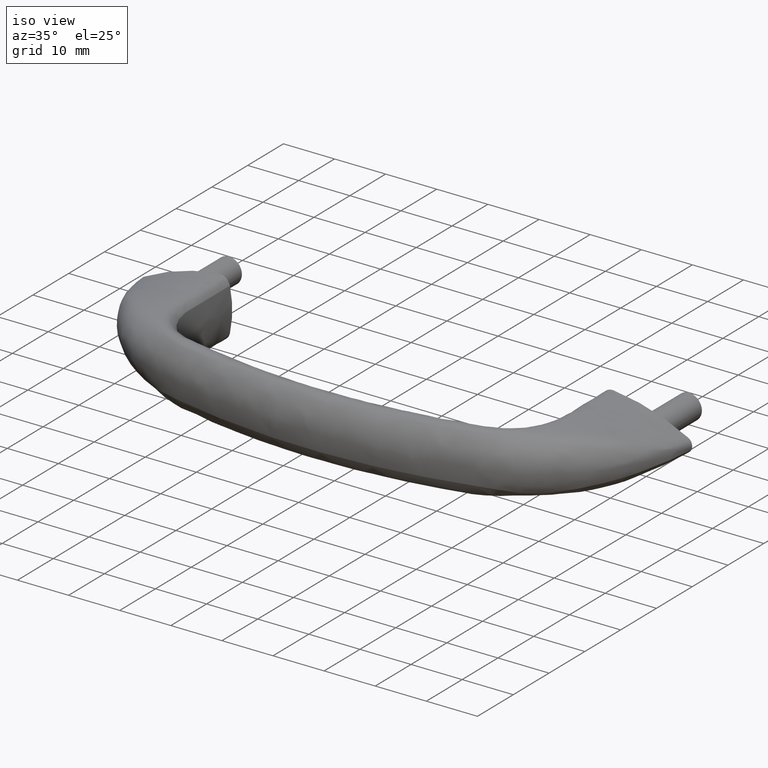
[diagram: clean part render]
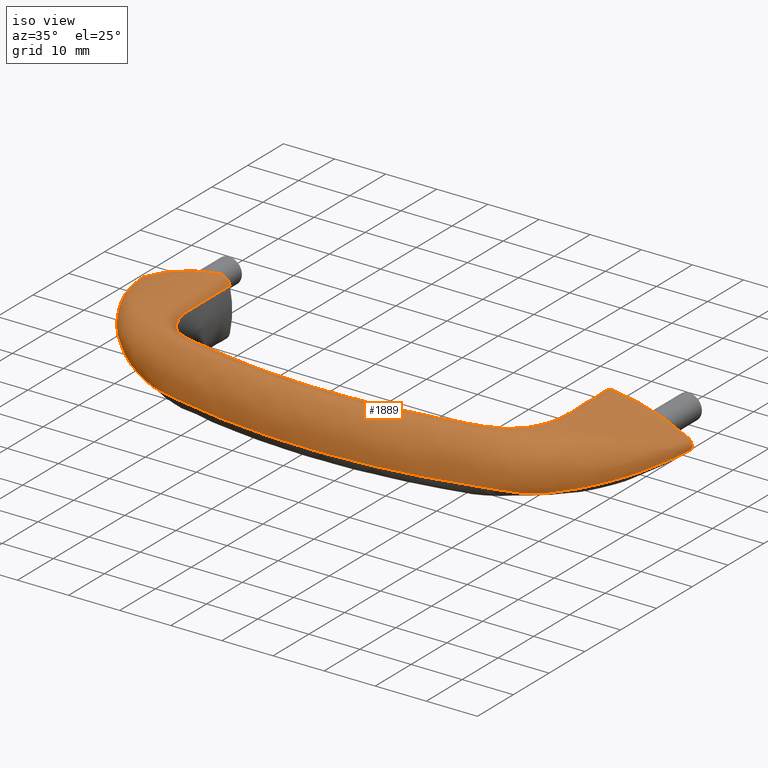
[diagram: same view with one face highlighted and labeled with its STEP entity id]
A machine part, iso view. The second image highlights one B-rep face of the part: STEP entity #1889.
In plain terms, the highlighted face is a freeform B-spline surface patch.
Its self-contained STEP definition (entity closure, byte-faithful):
#805=CARTESIAN_POINT('',(98.878002993412011,0.553430798106716,-0.756641729954336));
#806=CARTESIAN_POINT('',(98.901408684548301,0.553467302184724,-0.707158536391800));
#807=CARTESIAN_POINT('',(98.924814919005001,0.553503522097520,-0.657675992295384));
#808=CARTESIAN_POINT('',(99.045832886456097,0.553693878752459,-0.401815228492675));
#809=CARTESIAN_POINT('',(99.084146082232607,0.553760173932932,-0.199903540740606));
#810=CARTESIAN_POINT('',(99.084147838037211,0.553759255249835,0.105774624674784));
#811=CARTESIAN_POINT('',(99.062691220089476,0.553723835406503,0.318444688909904));
#812=CARTESIAN_POINT('',(98.985898065806936,0.553598584492805,0.534826058135147));
#813=CARTESIAN_POINT('',(98.819865867306234,0.553341018893351,0.863253391615453));
#814=CARTESIAN_POINT('',(98.637007554594533,0.553065203212205,1.094236229349398));
#815=CARTESIAN_POINT('',(98.226997995649015,0.552529658529445,1.314242424701145));
#816=CARTESIAN_POINT('',(97.442916862314462,0.552356737253605,1.744061006258313));
#817=CARTESIAN_POINT('',(95.071528088483490,0.551975224259605,2.842645725202503));
#818=CARTESIAN_POINT('',(93.477724781131712,0.551766479895790,3.497684189507691));
#819=CARTESIAN_POINT('',(90.105590298725105,0.551349084027518,4.592270971324390));
#820=CARTESIAN_POINT('',(88.330054421969848,0.551140570100308,5.028669951336880));
#821=CARTESIAN_POINT('',(85.349606818135072,0.550761757601786,5.589776911452356));
#822=CARTESIAN_POINT('',(84.148045285904416,0.550591459030476,5.725377331905053));
#823=CARTESIAN_POINT('',(83.173338292784678,0.550350701394166,5.827260749848779));
#824=CARTESIAN_POINT('',(82.475993757913244,0.550163836897253,5.629776184654474));
#825=CARTESIAN_POINT('',(82.117992529232950,0.550031217818936,5.336799104381637));
#826=CARTESIAN_POINT('',(81.694625623112344,0.549865605689357,4.905594253318324));
#827=CARTESIAN_POINT('',(81.532803854010567,0.549784312423746,4.624696188902797));
#828=CARTESIAN_POINT('',(81.439916953115528,0.549751539376433,4.170507239340502));
#829=CARTESIAN_POINT('',(81.435192350026611,0.549749639769161,4.149133489931195));
#830=CARTESIAN_POINT('',(98.668721504737746,-0.635901973379351,-0.846300396950564));
#831=CARTESIAN_POINT('',(98.695139273930621,-0.635937441993613,-0.791040150237200));
#832=CARTESIAN_POINT('',(98.721556515214758,-0.635972634503208,-0.735779272480277));
#833=CARTESIAN_POINT('',(98.858154737836188,-0.636157591558271,-0.450055400612536));
#834=CARTESIAN_POINT('',(98.901558718789218,-0.636222006229505,-0.223895489771594));
#835=CARTESIAN_POINT('',(98.901557012789240,-0.636221113605498,0.118468187560326));
#836=CARTESIAN_POINT('',(98.877256234507755,-0.636186698470836,0.356676057022448));
#837=CARTESIAN_POINT('',(98.790492348020663,-0.636065000387053,0.598622396904516));
#838=CARTESIAN_POINT('',(98.603124972133330,-0.635814740816270,0.965271962467786));
#839=CARTESIAN_POINT('',(98.396893820965985,-0.635546748840148,1.222341709725420));
#840=CARTESIAN_POINT('',(97.936859298554950,-0.635026395257501,1.464083238372085));
#841=CARTESIAN_POINT('',(97.159816918395123,-0.634858379014795,1.881308555839928));
#842=CARTESIAN_POINT('',(94.828418080089918,-0.634487687904145,2.941697691436794));
#843=CARTESIAN_POINT('',(93.268146705273082,-0.634284864720450,3.572130721400502));
#844=CARTESIAN_POINT('',(89.971469974263627,-0.633879308578396,4.626551214030213));
#845=CARTESIAN_POINT('',(88.237808961750176,-0.633676709294811,5.047954965281432));
#846=CARTESIAN_POINT('',(85.323377828453388,-0.633308642078193,5.592327187408829));
#847=CARTESIAN_POINT('',(84.145735307194442,-0.633143174145165,5.725513933785996));
#848=CARTESIAN_POINT('',(83.174461533064346,-0.632909245767877,5.827056586468174));
#849=CARTESIAN_POINT('',(82.479351787198596,-0.632727681813331,5.631286327836863));
#850=CARTESIAN_POINT('',(82.121137088925309,-0.632598824568080,5.339679752322210));
#851=CARTESIAN_POINT('',(81.696778917175948,-0.632437910142579,4.909436242546344));
#852=CARTESIAN_POINT('',(81.532949544253569,-0.632358922817398,4.627543841779803));
#853=CARTESIAN_POINT('',(81.439470987660371,-0.632327079400532,4.170149966893079));
#854=CARTESIAN_POINT('',(81.434712315545625,-0.632325233676952,4.148629106411508));
#855=CARTESIAN_POINT('',(98.309445171100506,-2.837988150713506,-1.000688064752153));
#856=CARTESIAN_POINT('',(98.341026615029051,-2.838247958193167,-0.935511842626263));
#857=CARTESIAN_POINT('',(98.372604192027794,-2.838505743207082,-0.870330998108430));
#858=CARTESIAN_POINT('',(98.535920503751242,-2.839860553010680,-0.533359508977555));
#859=CARTESIAN_POINT('',(98.588190923233540,-2.840332390259899,-0.265341747282522));
#860=CARTESIAN_POINT('',(98.588178426789170,-2.840325851792064,0.140394758928182));
#861=CARTESIAN_POINT('',(98.558932892804492,-2.840073761046906,0.422708620213339));
#862=CARTESIAN_POINT('',(98.454995321650074,-2.839182322994258,0.708629153283355));
#863=CARTESIAN_POINT('',(98.231079984512903,-2.837349172483586,1.140850203956823));
#864=CARTESIAN_POINT('',(97.985078363054001,-2.835386132163698,1.442288502237137));
#865=CARTESIAN_POINT('',(97.440791046468831,-2.831574543928432,1.721716355969697));
#866=CARTESIAN_POINT('',(96.675634485244700,-2.830343825518106,2.117037501691094));
#867=CARTESIAN_POINT('',(94.412396996025066,-2.827628514384723,3.111565653018172));
#868=CARTESIAN_POINT('',(92.909497167557817,-2.826142835249233,3.699995357257720));
#869=CARTESIAN_POINT('',(89.741617373940869,-2.823172137878563,4.685272197639472));
#870=CARTESIAN_POINT('',(88.079503564633029,-2.821688098810615,5.080996410593657));
#871=CARTESIAN_POINT('',(85.277897840364830,-2.818992007692143,5.596659563137733));
#872=CARTESIAN_POINT('',(84.141150200247679,-2.817779955641620,5.725665258254456));
#873=CARTESIAN_POINT('',(83.175805334291738,-2.816066431068125,5.826642912866987));
#874=CARTESIAN_POINT('',(82.484583668991704,-2.814736475714346,5.633887228039602));
#875=CARTESIAN_POINT('',(82.125937186111130,-2.813792596828123,5.344518282917623));
#876=CARTESIAN_POINT('',(81.699865475556606,-2.812613899204866,4.915895559110846));
#877=CARTESIAN_POINT('',(81.532632609567557,-2.812035317314717,4.632268905184016));
#878=CARTESIAN_POINT('',(81.438171063251318,-2.811802064393727,4.169468472373229));
#879=CARTESIAN_POINT('',(81.433354594463836,-2.811788544474737,4.147699765200338));
#880=CARTESIAN_POINT('',(97.378671912035685,-5.937540137560313,-1.393030790721864));
#881=CARTESIAN_POINT('',(97.423747822383845,-5.936743549357075,-1.302139864214887));
#882=CARTESIAN_POINT('',(97.468835589013679,-5.935953162177603,-1.211263110290230));
#883=CARTESIAN_POINT('',(97.701837208104507,-5.931799219001767,-0.741219826359677));
#884=CARTESIAN_POINT('',(97.775013905017772,-5.930352532451131,-0.368508377909290));
#885=CARTESIAN_POINT('',(97.775052220004582,-5.930372579858346,0.195000223255029));
#886=CARTESIAN_POINT('',(97.734006182225002,-5.931145508005010,0.587274705005470));
#887=CARTESIAN_POINT('',(97.586499785513510,-5.933878720449769,0.985713737338442));
#888=CARTESIAN_POINT('',(97.266625763065022,-5.939499290240383,1.588543461775494));
#889=CARTESIAN_POINT('',(96.911839252635730,-5.945518111420352,2.011673292904952));
#890=CARTESIAN_POINT('',(96.122863055857195,-5.957204711928402,2.382674115983242));
#891=CARTESIAN_POINT('',(95.391711380539178,-5.960978182070409,2.725881641717435));
#892=CARTESIAN_POINT('',(93.313019155371464,-5.969303519046050,3.554498468884199));
#893=CARTESIAN_POINT('',(91.961889953818826,-5.973858716897418,4.030257179800755));
#894=CARTESIAN_POINT('',(89.139745961754471,-5.982967086232858,4.839485826218628));
#895=CARTESIAN_POINT('',(87.668512257762316,-5.987517255520555,5.167659129503887));
#896=CARTESIAN_POINT('',(85.167423137133611,-5.995783662564053,5.608626248094102));
#897=CARTESIAN_POINT('',(84.139338293790075,-5.999499900319854,5.727408893496246));
#898=CARTESIAN_POINT('',(83.188783782510640,-6.004753688482461,5.826597867728603));
#899=CARTESIAN_POINT('',(82.506796678462550,-6.008831426148173,5.640488582970816));
#900=CARTESIAN_POINT('',(82.148092920026443,-6.011725425916890,5.358787417671722));
#901=CARTESIAN_POINT('',(81.717774020733145,-6.015339396627412,4.934843983633876));
#902=CARTESIAN_POINT('',(81.541025272726657,-6.017113369835961,4.647167402829086));
#903=CARTESIAN_POINT('',(81.443485551578291,-6.017828539874439,4.168810448979150));
#904=CARTESIAN_POINT('',(81.438508136644231,-6.017869992907242,4.146323265054905));
#905=CARTESIAN_POINT('',(95.825141258333431,-9.243988017597651,-1.949495727019260));
#906=CARTESIAN_POINT('',(95.892136268490532,-9.246981664821496,-1.824835477312996));
#907=CARTESIAN_POINT('',(95.959086721717767,-9.249952008062799,-1.700121965819094));
#908=CARTESIAN_POINT('',(96.305741929124551,-9.265562885057747,-1.055872804590794));
#909=CARTESIAN_POINT('',(96.421396331367262,-9.270999657983143,-0.525203547867086));
#910=CARTESIAN_POINT('',(96.421252340339620,-9.270924318096471,0.277849216286358));
#911=CARTESIAN_POINT('',(96.356758623948011,-9.268019587407435,0.836906783486051));
#912=CARTESIAN_POINT('',(96.133626530762399,-9.257747939127698,1.391786605676217));
#913=CARTESIAN_POINT('',(95.659563932692492,-9.236625352725241,2.215298632681196));
#914=CARTESIAN_POINT('',(95.143264958688818,-9.214006103227204,2.767447850425286));
#915=CARTESIAN_POINT('',(94.065790651216261,-9.170086849810042,3.208827480516152));
#916=CARTESIAN_POINT('',(93.395457221605611,-9.155905823316120,3.468198456328935));
#917=CARTESIAN_POINT('',(91.620016241241203,-9.124618488375191,4.082371428497564));
#918=CARTESIAN_POINT('',(90.515863530925103,-9.107499661676032,4.439828160370620));
#919=CARTESIAN_POINT('',(88.214724460445609,-9.073269623540970,5.032832473143500));
#920=CARTESIAN_POINT('',(87.024940861829307,-9.056169694618120,5.281964503784160));
#921=CARTESIAN_POINT('',(84.966174726445999,-9.025103823448619,5.626688007790820));
#922=CARTESIAN_POINT('',(84.098319425580300,-9.011137881201961,5.726140285721220));
#923=CARTESIAN_POINT('',(83.181411831882414,-8.991393691815604,5.822712425951016));
#924=CARTESIAN_POINT('',(82.522401434251336,-8.976069201705274,5.654336725867602));
#925=CARTESIAN_POINT('',(82.160234883248535,-8.965193300784074,5.381922119183515));
#926=CARTESIAN_POINT('',(81.720386630397130,-8.951611686920549,4.966437191118097));
#927=CARTESIAN_POINT('',(81.524874048709947,-8.944944942485527,4.669177054596163));
#928=CARTESIAN_POINT('',(81.422780803489317,-8.942257271752284,4.163318296646508));
#929=CARTESIAN_POINT('',(81.417500203686075,-8.942101487677068,4.139581063611369));
#930=CARTESIAN_POINT('',(95.177347953246240,-10.871504441051339,-2.233022030103136));
#931=CARTESIAN_POINT('',(95.254026658219999,-10.862058033202681,-2.085453300213961));
#932=CARTESIAN_POINT('',(95.330845961901872,-10.852685160713120,-1.938052637077860));
#933=CARTESIAN_POINT('',(95.726524210647113,-10.803425278053950,-1.174036609805825));
#934=CARTESIAN_POINT('',(95.840654926958251,-10.786269624567209,-0.582218064795897));
#935=CARTESIAN_POINT('',(95.841109288435135,-10.786507358422799,0.308221806194832));
#936=CARTESIAN_POINT('',(95.776360729443198,-10.795673191511129,0.929098869933096));
#937=CARTESIAN_POINT('',(95.531501177473061,-10.828085219941030,1.571191985510295));
#938=CARTESIAN_POINT('',(94.985322561274003,-10.894737217005650,2.551624379589980));
#939=CARTESIAN_POINT('',(94.357102385534148,-10.966111911487671,3.264378051328311));
#940=CARTESIAN_POINT('',(92.917082413992688,-11.104698441283951,3.788686697985455));
#941=CARTESIAN_POINT('',(92.265382207800585,-11.149446452641900,4.006477293173281));
#942=CARTESIAN_POINT('',(90.651756377412099,-11.248173157644199,4.485438136135585));
#943=CARTESIAN_POINT('',(89.689756169833203,-11.302191352441060,4.746112950080001));
#944=CARTESIAN_POINT('',(87.717581151874896,-11.410203712188521,5.188354262988380));
#945=CARTESIAN_POINT('',(86.708881094637007,-11.464162275342400,5.365577050042759));
#946=CARTESIAN_POINT('',(84.934859814915697,-11.562190154814459,5.640197039314310));
#947=CARTESIAN_POINT('',(84.169358677920599,-11.606259471132660,5.736978030880640));
#948=CARTESIAN_POINT('',(83.258038378509923,-11.668561957577600,5.830048922625733));
#949=CARTESIAN_POINT('',(82.599066773088055,-11.716918150819749,5.657573352957705));
#950=CARTESIAN_POINT('',(82.244541946257598,-11.751236889181699,5.403555434564410));
#951=CARTESIAN_POINT('',(81.803332664844675,-11.794093463188119,4.994604459823711));
#952=CARTESIAN_POINT('',(81.596462957250338,-11.815130272887799,4.697993516594178));
#953=CARTESIAN_POINT('',(81.488548524376810,-11.823611176618501,4.170833728431199));
#954=CARTESIAN_POINT('',(81.483082056927046,-11.824102750875850,4.146078648165740));
#955=CARTESIAN_POINT('',(91.444115331264143,-15.667412250402140,-3.258665977410748));
#956=CARTESIAN_POINT('',(91.570451236098464,-15.689077855917271,-3.060371848891760));
#957=CARTESIAN_POINT('',(91.696464673790302,-15.710574805991390,-2.861692254486620));
#958=CARTESIAN_POINT('',(92.351518773328863,-15.823553750211641,-1.838689399465425));
#959=CARTESIAN_POINT('',(92.596191158268823,-15.862900730222670,-0.915712947587861));
#960=CARTESIAN_POINT('',(92.595149067277546,-15.862355480852150,0.484170281064260));
#961=CARTESIAN_POINT('',(92.460075190355965,-15.841333381543100,1.458739238332033));
#962=CARTESIAN_POINT('',(92.024287776286755,-15.766995470968180,2.375332179222881));
#963=CARTESIAN_POINT('',(91.135554300443118,-15.614127216883460,3.671990684188196));
#964=CARTESIAN_POINT('',(90.204365122647786,-15.450427321729160,4.434795142104108));
#965=CARTESIAN_POINT('',(88.540052722131648,-15.132575167515601,4.877678846514669));
#966=CARTESIAN_POINT('',(88.076852358683595,-15.029944328661349,4.987545409514889));
#967=CARTESIAN_POINT('',(87.119782524491299,-14.803511818160359,5.193635503147499));
#968=CARTESIAN_POINT('',(86.625761361246006,-14.679619549495101,5.290129622961790));
#969=CARTESIAN_POINT('',(85.652046858482507,-14.431890125301519,5.462711077930120));
#970=CARTESIAN_POINT('',(85.172434651031494,-14.308134623508280,5.539935358672050));
#971=CARTESIAN_POINT('',(84.272368890071391,-14.083304889269399,5.670777936440500));
#972=CARTESIAN_POINT('',(83.851957041931698,-13.982230656823800,5.724539075156351));
#973=CARTESIAN_POINT('',(83.181651555413779,-13.839338129256380,5.800042557940383));
#974=CARTESIAN_POINT('',(82.641605008198269,-13.728431822458919,5.743645075322562));
#975=CARTESIAN_POINT('',(82.217934598353722,-13.649720818335590,5.489134703348044));
#976=CARTESIAN_POINT('',(81.686970609647503,-13.551428044931290,5.064761520805961));
#977=CARTESIAN_POINT('',(81.423161438622955,-13.503179522577350,4.666861472556636));
#978=CARTESIAN_POINT('',(81.323151823641652,-13.483728328262560,4.147448878697122));
#979=CARTESIAN_POINT('',(81.317561750865750,-13.482600888699119,4.122854610325702));
#980=CARTESIAN_POINT('',(88.550297693491359,-18.103179763049390,-3.967184879318933));
#981=CARTESIAN_POINT('',(88.712147474548601,-18.156675039198831,-3.746690206026871));
#982=CARTESIAN_POINT('',(88.875291233334735,-18.210847086267691,-3.527742308223564));
#983=CARTESIAN_POINT('',(89.704829646451202,-18.483615981564920,-2.378454713200341));
#984=CARTESIAN_POINT('',(90.106819562306143,-18.607443029449470,-1.192792484210861));
#985=CARTESIAN_POINT('',(90.111001205508018,-18.609630974976788,0.632567722687083));
#986=CARTESIAN_POINT('',(89.878164532575113,-18.536240967372269,1.885038196422670));
#987=CARTESIAN_POINT('',(89.289445987198405,-18.348111819562391,2.995887886955325));
#988=CARTESIAN_POINT('',(88.168000981996443,-17.975487470983840,4.396195525245052));
#989=CARTESIAN_POINT('',(87.134337442104368,-17.614591284588510,4.977629119269438));
#990=CARTESIAN_POINT('',(85.815324329370767,-17.109971300962471,5.265808246253886));
#991=CARTESIAN_POINT('',(85.521788731140802,-16.996494865997100,5.326297406570430));
#992=CARTESIAN_POINT('',(84.979220909581102,-16.785369994829299,5.433090711736140));
#993=CARTESIAN_POINT('',(84.730933705316801,-16.688085101167651,5.478674686338200));
#994=CARTESIAN_POINT('',(84.244898261389196,-16.498128735320751,5.561451938504020));
#995=CARTESIAN_POINT('',(84.007133086974704,-16.405441964912050,5.598352543731370));
#996=CARTESIAN_POINT('',(83.506875228720091,-16.212528306363950,5.670172587704860));
#997=CARTESIAN_POINT('',(83.244371858005096,-16.112301418224551,5.705055423699980));
#998=CARTESIAN_POINT('',(82.711771739454292,-15.911924837382550,5.772051737623676));
#999=CARTESIAN_POINT('',(82.231986568178826,-15.737477073122060,5.731403702650784));
#1000=CARTESIAN_POINT('',(81.805189369235521,-15.586191541070940,5.523962295676723));
#1001=CARTESIAN_POINT('',(81.246850033256592,-15.391575477606370,5.094136264821235));
#1002=CARTESIAN_POINT('',(80.963715607808155,-15.293619647724549,4.641005438535150));
#1003=CARTESIAN_POINT('',(80.863518546547553,-15.257362201516020,4.125569889771426));
#1004=CARTESIAN_POINT('',(80.858852957103124,-15.255758364183420,4.100423308139810));
#1005=CARTESIAN_POINT('',(83.968631897361121,-20.442916804573169,-5.069461823134501));
#1006=CARTESIAN_POINT('',(84.201758510821037,-20.584607900695040,-4.845525650765022));
#1007=CARTESIAN_POINT('',(84.428575316354582,-20.722998866979712,-4.614046955814562));
#1008=CARTESIAN_POINT('',(85.669665674186902,-21.474314135462489,-3.501037528363887));
#1009=CARTESIAN_POINT('',(86.470285899932819,-21.940966583360240,-1.795595122315692));
#1010=CARTESIAN_POINT('',(86.449895003836403,-21.930297531086161,0.943116745088914));
#1011=CARTESIAN_POINT('',(86.039349715602711,-21.688762343200750,2.821158619076457));
#1012=CARTESIAN_POINT('',(85.017709178072678,-21.081723757720582,4.097930089533668));
#1013=CARTESIAN_POINT('',(83.446764733625940,-20.123733923688540,5.477161782101687));
#1014=CARTESIAN_POINT('',(82.431374414766623,-19.467052256926301,5.605873887404260));
#1015=CARTESIAN_POINT('',(82.097507277134000,-19.130943956914290,5.645641884016713));
#1016=CARTESIAN_POINT('',(82.035189888300110,-19.064355852632549,5.658382578741760));
#1017=CARTESIAN_POINT('',(81.952997369257503,-18.960411634681201,5.671376345426200));
#1018=CARTESIAN_POINT('',(81.929449017310802,-18.921282782923051,5.675033095236150));
#1019=CARTESIAN_POINT('',(81.888465383144606,-18.847348904559102,5.682036203551959));
#1020=CARTESIAN_POINT('',(81.871021451061793,-18.812526145387999,5.685547646527330));
#1021=CARTESIAN_POINT('',(81.812848607977003,-18.725491634858901,5.697027490375620));
#1022=CARTESIAN_POINT('',(81.772125499615214,-18.673279883500950,5.705015765402701));
#1023=CARTESIAN_POINT('',(81.650417680241304,-18.542839490703852,5.728292514803107));
#1024=CARTESIAN_POINT('',(81.369257027007023,-18.337976959994599,5.754879677681907));
#1025=CARTESIAN_POINT('',(80.937492852514168,-18.070305825537190,5.625116012289843));
#1026=CARTESIAN_POINT('',(80.275920510035888,-17.672381245718370,5.210560320249224));
#1027=CARTESIAN_POINT('',(79.910798930675682,-17.456466117426960,4.604111816375728));
#1028=CARTESIAN_POINT('',(79.857789172567990,-17.415974952530028,4.086265415430307));
#1029=CARTESIAN_POINT('',(79.850270751977533,-17.411674723474771,4.063049331356954));
#1030=CARTESIAN_POINT('',(80.992135977625253,-22.236258462250589,-5.087556585406887));
#1031=CARTESIAN_POINT('',(81.152234104096820,-22.422261910157861,-4.860043916662962));
#1032=CARTESIAN_POINT('',(81.308920101455641,-22.604264826695609,-4.626166401232667));
#1033=CARTESIAN_POINT('',(82.155862974387347,-23.588409720032960,-3.487498000082619));
#1034=CARTESIAN_POINT('',(82.741516947299004,-24.278559508675890,-1.793222399455734));
#1035=CARTESIAN_POINT('',(82.730519185533709,-24.265673428945899,0.942966404161193));
#1036=CARTESIAN_POINT('',(82.422891177546163,-23.903003516270950,2.809050077757979));
#1037=CARTESIAN_POINT('',(81.711614685092684,-23.071999995803591,4.103526904953124));
#1038=CARTESIAN_POINT('',(80.635902769192441,-21.821730710005738,5.484876718428959));
#1039=CARTESIAN_POINT('',(79.984991268464711,-21.083119044230141,5.711096840010603));
#1040=CARTESIAN_POINT('',(80.012345193693136,-21.146505412232020,5.676756934796409));
#1041=CARTESIAN_POINT('',(80.010432329996206,-21.151552919197599,5.668939375014640));
#1042=CARTESIAN_POINT('',(80.009588034895700,-21.166704993858399,5.659604577139210));
#1043=CARTESIAN_POINT('',(80.007939958901702,-21.173163213686351,5.656864741991490));
#1044=CARTESIAN_POINT('',(80.003922686244096,-21.185566689960851,5.650216739596591));
#1045=CARTESIAN_POINT('',(80.001670621622111,-21.191683669068851,5.646242515881520));
#1046=CARTESIAN_POINT('',(80.000273689445507,-21.208200305957948,5.639012646174559));
#1047=CARTESIAN_POINT('',(80.001127907572197,-21.218599963739049,5.635753868623870));
#1048=CARTESIAN_POINT('',(80.008874664636338,-21.245589856562400,5.630724949264311));
#1049=CARTESIAN_POINT('',(79.826693706302393,-21.061795396859690,5.738180421477265));
#1050=CARTESIAN_POINT('',(79.379979377045146,-20.591018060285641,5.720675233123060));
#1051=CARTESIAN_POINT('',(78.669242705385869,-19.836795776024189,5.391924357216478));
#1052=CARTESIAN_POINT('',(78.263949214318856,-19.406002811579640,4.626532741098851));
#1053=CARTESIAN_POINT('',(78.237028972124918,-19.380097539440449,4.072037504643649));
#1054=CARTESIAN_POINT('',(78.228690392651117,-19.371174923994900,4.048625464030316));
#1055=CARTESIAN_POINT('',(78.496339345383689,-24.671705244295730,-4.265751034328773));
#1056=CARTESIAN_POINT('',(78.560375472715918,-24.789801221861850,-4.038585756709844));
#1057=CARTESIAN_POINT('',(78.622958145553568,-24.905014636323550,-3.809370834110621));
#1058=CARTESIAN_POINT('',(78.962422525788611,-25.532176897730590,-2.647023066198303));
#1059=CARTESIAN_POINT('',(79.154264136359146,-25.894049113178990,-1.333714426549890));
#1060=CARTESIAN_POINT('',(79.149541566684547,-25.884691030666929,0.703802359349648));
#1061=CARTESIAN_POINT('',(79.050917122451850,-25.699477057400319,2.111501595105888));
#1062=CARTESIAN_POINT('',(78.785021713415844,-25.203686265738000,3.265881026181766));
#1063=CARTESIAN_POINT('',(78.354956944507819,-24.411428378743508,4.707954249838044));
#1064=CARTESIAN_POINT('',(78.023414024003600,-23.815654754865928,5.262698238410806));
#1065=CARTESIAN_POINT('',(77.853405303915920,-23.544067006899429,5.480494119766394));
#1066=CARTESIAN_POINT('',(77.818753494307202,-23.488077237031650,5.521853042699990));
#1067=CARTESIAN_POINT('',(77.756063810754895,-23.386588302495049,5.588272306612351));
#1068=CARTESIAN_POINT('',(77.728540586479596,-23.341778042138149,5.613573518624031));
#1069=CARTESIAN_POINT('',(77.673983733033609,-23.252861906141899,5.662237531542970));
#1070=CARTESIAN_POINT('',(77.646747454282391,-23.208460173230101,5.685675312038820));
#1071=CARTESIAN_POINT('',(77.582045722507502,-23.103910756609750,5.732557917592300));
#1072=CARTESIAN_POINT('',(77.544580444310682,-23.043763072901200,5.756003341435640));
#1073=CARTESIAN_POINT('',(77.457834938801270,-22.905756414049321,5.799581860359387));
#1074=CARTESIAN_POINT('',(77.283243808171378,-22.607490141205119,5.894222356778463));
#1075=CARTESIAN_POINT('',(76.987033246352112,-22.086227259496670,5.816539493133227));
#1076=CARTESIAN_POINT('',(76.539116915251341,-21.294380701335879,5.449967502543110));
#1077=CARTESIAN_POINT('',(76.288685129855224,-20.850858785329908,4.777604843723328));
#1078=CARTESIAN_POINT('',(76.255398054544770,-20.794824989556400,4.221948595465273));
#1079=CARTESIAN_POINT('',(76.250405136093647,-20.785957136078601,4.197444495518773));
#1080=CARTESIAN_POINT('',(76.506300601422055,-25.586702137902659,-4.062112169852542));
#1081=CARTESIAN_POINT('',(76.547945122560151,-25.692144050338360,-3.840415834476781));
#1082=CARTESIAN_POINT('',(76.589785127592847,-25.797973656140499,-3.618995168265453));
#1083=CARTESIAN_POINT('',(76.803987097203517,-26.340945481445029,-2.471051394764100));
#1084=CARTESIAN_POINT('',(76.934491356734526,-26.671111794932401,-1.245414508237042));
#1085=CARTESIAN_POINT('',(76.935126523721848,-26.672370420114621,0.659235845942678));
#1086=CARTESIAN_POINT('',(76.860867904316990,-26.485152421444319,1.965083627958445));
#1087=CARTESIAN_POINT('',(76.695100754997554,-26.064582987193759,3.085582045814799));
#1088=CARTESIAN_POINT('',(76.410925325471808,-25.345770170220760,4.495052710890476));
#1089=CARTESIAN_POINT('',(76.192945269131172,-24.794899316081668,5.089671809181070));
#1090=CARTESIAN_POINT('',(76.075398991845645,-24.501695047106569,5.396871645922039));
#1091=CARTESIAN_POINT('',(76.049161030844701,-24.436932812397600,5.454604949857489));
#1092=CARTESIAN_POINT('',(76.000595490050387,-24.317599020904900,5.547928446133170));
#1093=CARTESIAN_POINT('',(75.978198691907210,-24.262934809208751,5.583486242269650));
#1094=CARTESIAN_POINT('',(75.933150525088607,-24.153194374106601,5.651152912462131));
#1095=CARTESIAN_POINT('',(75.910183887958596,-24.097400581633600,5.683658041099410));
#1096=CARTESIAN_POINT('',(75.855136076118413,-23.963884788654401,5.746619026308070));
#1097=CARTESIAN_POINT('',(75.823054877894805,-23.886162788148098,5.777074802345140));
#1098=CARTESIAN_POINT('',(75.748976306479378,-23.706711960959840,5.830501110657494));
#1099=CARTESIAN_POINT('',(75.614064731735297,-23.374641254257721,5.924539651521969));
#1100=CARTESIAN_POINT('',(75.392386364586841,-22.825920585310740,5.841965762788285));
#1101=CARTESIAN_POINT('',(75.058890734650944,-21.999767426227390,5.477887545750375));
#1102=CARTESIAN_POINT('',(74.871631126229360,-21.536301613690028,4.824070861948925));
#1103=CARTESIAN_POINT('',(74.844857034990000,-21.471082127408739,4.267002065155689));
#1104=CARTESIAN_POINT('',(74.841146922276209,-21.461897645768978,4.242324390485808));
#1105=CARTESIAN_POINT('',(74.221584124059248,-26.413157530256861,-3.934147739401865));
#1106=CARTESIAN_POINT('',(74.239536634502201,-26.505790325623579,-3.713228946686320));
#1107=CARTESIAN_POINT('',(74.257405510129601,-26.598257252264901,-3.492192213100760));
#1108=CARTESIAN_POINT('',(74.350711505706684,-27.078174291911200,-2.350617199502734));
#1109=CARTESIAN_POINT('',(74.402924682535783,-27.352996943921511,-1.181003963592002));
#1110=CARTESIAN_POINT('',(74.402652935986339,-27.352458460231070,0.624789780296384));
#1111=CARTESIAN_POINT('',(74.373922496147003,-27.199574403037971,1.868654058957153));
#1112=CARTESIAN_POINT('',(74.302992505103163,-26.833255619438500,2.957924336969050));
#1113=CARTESIAN_POINT('',(74.180522388891916,-26.200976984249291,4.373726460644012));
#1114=CARTESIAN_POINT('',(74.080772310495917,-25.693399366796719,5.028689495929946));
#1115=CARTESIAN_POINT('',(74.011411471091250,-25.358078106641340,5.430910030480447));
#1116=CARTESIAN_POINT('',(73.995737183683104,-25.282197352523649,5.506906400614851));
#1117=CARTESIAN_POINT('',(73.966101657162710,-25.139115221334251,5.630020803500650));
#1118=CARTESIAN_POINT('',(73.952170032070100,-25.071953485261250,5.677152696476370));
#1119=CARTESIAN_POINT('',(73.923986088884206,-24.936151914324650,5.766864094594400));
#1120=CARTESIAN_POINT('',(73.909476445268581,-24.866308727550951,5.810263168178430));
#1121=CARTESIAN_POINT('',(73.874160709255307,-24.696740418676949,5.893457662428211));
#1122=CARTESIAN_POINT('',(73.853354626917493,-24.597015296576600,5.933253117549359));
#1123=CARTESIAN_POINT('',(73.804837869991928,-24.364909790903958,6.001181281965098));
#1124=CARTESIAN_POINT('',(73.728070345641555,-23.989084445288139,6.097587899379010));
#1125=CARTESIAN_POINT('',(73.610098676552340,-23.404324340652298,6.007336662132123));
#1126=CARTESIAN_POINT('',(73.434398567784882,-22.531729222644149,5.637087631684076));
#1127=CARTESIAN_POINT('',(73.335369034049464,-22.040144798970420,4.991049551086590));
#1128=CARTESIAN_POINT('',(73.318844887743566,-21.960303656451071,4.419207445848155));
#1129=CARTESIAN_POINT('',(73.316885593543489,-21.950575478292372,4.393735412694908));
#1130=CARTESIAN_POINT('',(72.796437985345079,-26.674576642118911,-3.984980446457794));
#1131=CARTESIAN_POINT('',(72.821847867944570,-26.772791735472769,-3.763752781986782));
#1132=CARTESIAN_POINT('',(72.847284993066864,-26.871060857611450,-3.542563534654810));
#1133=CARTESIAN_POINT('',(72.978512169199362,-27.378580067176710,-2.398458589064457));
#1134=CARTESIAN_POINT('',(73.055923204825916,-27.676879669357589,-1.206590467089283));
#1135=CARTESIAN_POINT('',(73.056011721330904,-27.677055070834669,0.638473166828515));
#1136=CARTESIAN_POINT('',(73.012500749325596,-27.509696623386681,1.906959828891015));
#1137=CARTESIAN_POINT('',(72.911646784205416,-27.119868236662320,3.008635201654804));
#1138=CARTESIAN_POINT('',(72.738273008753680,-26.449844240720850,4.421922210941506));
#1139=CARTESIAN_POINT('',(72.602101130357681,-25.922403230245450,5.052914165661770));
#1140=CARTESIAN_POINT('',(72.520135528865509,-25.602160124970052,5.417388591555489));
#1141=CARTESIAN_POINT('',(72.501734435889105,-25.530324603338649,5.486130124617100));
#1142=CARTESIAN_POINT('',(72.467333191303197,-25.395980050467699,5.597410360591789));
#1143=CARTESIAN_POINT('',(72.451323393464307,-25.333458106878449,5.639944548783510));
#1144=CARTESIAN_POINT('',(72.419032840452914,-25.207353681246548,5.720898879075590));
#1145=CARTESIAN_POINT('',(72.402493168518006,-25.142755403540399,5.759970432033679));
#1146=CARTESIAN_POINT('',(72.362554914194206,-24.986695647834448,5.835127348699000));
#1147=CARTESIAN_POINT('',(72.339156328528503,-24.895234169834652,5.871212701182990));
#1148=CARTESIAN_POINT('',(72.284867198144624,-24.682937518555850,5.933380135054524));
#1149=CARTESIAN_POINT('',(72.192349433382503,-24.322635974427460,6.028846055580258));
#1150=CARTESIAN_POINT('',(72.044807073830142,-23.749253159754879,5.941644575258501));
#1151=CARTESIAN_POINT('',(71.823817077265730,-22.890709701475600,5.573846844357289));
#1152=CARTESIAN_POINT('',(71.699525558461886,-22.407821057928949,4.924718784328951));
#1153=CARTESIAN_POINT('',(71.680458190182051,-22.333401832458460,4.358745241610540));
#1154=CARTESIAN_POINT('',(71.677997148143945,-22.323840652532681,4.333588760145681));
#1155=CARTESIAN_POINT('',(69.302482691939474,-27.525405928562080,-3.961343963777718));
#1156=CARTESIAN_POINT('',(69.320943130591445,-27.621839872925779,-3.740259920261034));
#1157=CARTESIAN_POINT('',(69.339379255611220,-27.718225596873079,-3.519141589642617));
#1158=CARTESIAN_POINT('',(69.434970317018681,-28.217121836549211,-2.376213026290819));
#1159=CARTESIAN_POINT('',(69.490147162282838,-28.506965439821379,-1.194693108443953));
#1160=CARTESIAN_POINT('',(69.490068162339966,-28.506808894892760,0.632110587546347));
#1161=CARTESIAN_POINT('',(69.459319195679399,-28.344803111439202,1.889148193036337));
#1162=CARTESIAN_POINT('',(69.386187501712485,-27.962676136088380,2.985055373936464));
#1163=CARTESIAN_POINT('',(69.260239534551872,-27.304645701101769,4.399511875487486));
#1164=CARTESIAN_POINT('',(69.159791209772109,-26.782045687208729,5.041650040264780));
#1165=CARTESIAN_POINT('',(69.095333754319398,-26.452066767233148,5.423675867513614));
#1166=CARTESIAN_POINT('',(69.080819072480892,-26.377737710206901,5.495790796185050));
#1167=CARTESIAN_POINT('',(69.053541185327902,-26.238182294837049,5.612573750732639));
#1168=CARTESIAN_POINT('',(69.040786589159808,-26.172967460700001,5.657245805974711));
#1169=CARTESIAN_POINT('',(69.015025132202794,-26.041273311401401,5.742272047718770));
#1170=CARTESIAN_POINT('',(69.001798273051506,-25.973682058264249,5.783355835953060));
#1171=CARTESIAN_POINT('',(68.969739679476490,-25.810000501333899,5.862250111385359));
#1172=CARTESIAN_POINT('',(68.950907947977498,-25.713910197540699,5.900060608600040));
#1173=CARTESIAN_POINT('',(68.907110725093460,-25.490576172935860,5.964906699887612));
#1174=CARTESIAN_POINT('',(68.835007890222670,-25.119993746885889,6.060810031029321));
#1175=CARTESIAN_POINT('',(68.721931184866207,-24.536474485635889,5.972190457300490));
#1176=CARTESIAN_POINT('',(68.552992231315827,-23.664147056649622,5.603252907124683));
#1177=CARTESIAN_POINT('',(68.457885596484758,-23.173135507935559,4.955561643394026));
#1178=CARTESIAN_POINT('',(68.442724331192508,-23.095558032182741,4.386859302931105));
#1179=CARTESIAN_POINT('',(68.440841829189253,-23.085838437359051,4.361556094438527));
#1180=CARTESIAN_POINT('',(63.279558016393452,-28.654795935574590,-3.979741273723863));
#1181=CARTESIAN_POINT('',(63.296103961709022,-28.754117022191551,-3.758545443726627));
#1182=CARTESIAN_POINT('',(63.312665718360037,-28.853469473424781,-3.537371915523307));
#1183=CARTESIAN_POINT('',(63.398126934468870,-29.366837336627508,-2.393527722339849));
#1184=CARTESIAN_POINT('',(63.448487589474972,-29.667796008031171,-1.203953343881789));
#1185=CARTESIAN_POINT('',(63.448538963724090,-29.667897831532159,0.637062861735921));
#1186=CARTESIAN_POINT('',(63.420243961364903,-29.499187374087271,1.903011769521012));
#1187=CARTESIAN_POINT('',(63.354577801207377,-29.105114350669488,3.003408586843827));
#1188=CARTESIAN_POINT('',(63.241683819248372,-28.427509078486651,4.416954821331975));
#1189=CARTESIAN_POINT('',(63.152947509795133,-27.893042919499720,5.050417402524357));
#1190=CARTESIAN_POINT('',(63.099360058774501,-27.565621551732640,5.418782205199930));
#1191=CARTESIAN_POINT('',(63.087327867731993,-27.492104675859348,5.488271472285210));
#1192=CARTESIAN_POINT('',(63.064827200739110,-27.354489879477299,5.600771419902281));
#1193=CARTESIAN_POINT('',(63.054353126196787,-27.290384463132799,5.643779479562560));
#1194=CARTESIAN_POINT('',(63.033226117835497,-27.161049861642400,5.725636374239671));
#1195=CARTESIAN_POINT('',(63.022403193157302,-27.094767114237499,5.765153951605720));
#1196=CARTESIAN_POINT('',(62.996263901382399,-26.934548026204101,5.841139276982030));
#1197=CARTESIAN_POINT('',(62.980947532383802,-26.840611685575599,5.877607018477010));
#1198=CARTESIAN_POINT('',(62.945406120014120,-26.622503119912508,5.940368193350012));
#1199=CARTESIAN_POINT('',(62.884948413856790,-26.254280008364859,6.035931068647056));
#1200=CARTESIAN_POINT('',(62.788617160745481,-25.669721283098799,5.948415259141332));
#1201=CARTESIAN_POINT('',(62.644350239048052,-24.794764065404639,5.580364880240574));
#1202=CARTESIAN_POINT('',(62.563206175834253,-24.302558434682041,4.931555295007707));
#1203=CARTESIAN_POINT('',(62.550733027174232,-24.226265234903451,4.364976897373576));
#1204=CARTESIAN_POINT('',(62.549126358022207,-24.216520134687268,4.339787892954545));
#1205=CARTESIAN_POINT('',(55.008917178787449,-29.689870331323242,-3.970566308446768));
#1206=CARTESIAN_POINT('',(55.016975354349633,-29.789090427962780,-3.749426227745515));
#1207=CARTESIAN_POINT('',(55.025029351598747,-29.888302199181670,-3.528280227258277));
#1208=CARTESIAN_POINT('',(55.066718841384017,-30.401375588350380,-2.384892669959992));
#1209=CARTESIAN_POINT('',(55.090959167028792,-30.700835289002310,-1.199335150306255));
#1210=CARTESIAN_POINT('',(55.090945590838601,-30.700808260982232,0.634593101544694));
#1211=CARTESIAN_POINT('',(55.077397576817347,-30.533176940242299,1.896097833014322));
#1212=CARTESIAN_POINT('',(55.045454493895470,-30.139752031335622,2.994255613303713));
#1213=CARTESIAN_POINT('',(54.990475544859358,-29.462774091598781,4.408255809198105));
#1214=CARTESIAN_POINT('',(54.946850354109820,-28.927001316059460,5.046045010879184));
#1215=CARTESIAN_POINT('',(54.919430193910713,-28.593825881228650,5.421222734926143));
#1216=CARTESIAN_POINT('',(54.913261605414696,-28.518897092356099,5.492021451814289));
#1217=CARTESIAN_POINT('',(54.901687919152103,-28.378427489649251,5.606657387789661));
#1218=CARTESIAN_POINT('',(54.896284300872800,-28.312888665508851,5.650495302560760));
#1219=CARTESIAN_POINT('',(54.885375032634613,-28.180600993171950,5.733932789692700));
#1220=CARTESIAN_POINT('',(54.879778004265887,-28.112754789541700,5.774231455727400));
#1221=CARTESIAN_POINT('',(54.866228084015113,-27.948605510731351,5.851667510358910));
#1222=CARTESIAN_POINT('',(54.858275192635602,-27.852302435551302,5.888804900685161));
#1223=CARTESIAN_POINT('',(54.839792745282367,-27.628585577253610,5.952605849077495));
#1224=CARTESIAN_POINT('',(54.809032257091488,-27.254151939817149,6.048338513901503));
#1225=CARTESIAN_POINT('',(54.760531871549247,-26.662145933897818,5.960272243570217));
#1226=CARTESIAN_POINT('',(54.688012072449112,-25.776583114734560,5.591779421417311));
#1227=CARTESIAN_POINT('',(54.647198507444507,-25.278267505368891,4.943527556904551));
#1228=CARTESIAN_POINT('',(54.640771391077017,-25.200286557002531,4.375889922797182));
#1229=CARTESIAN_POINT('',(54.639963452165503,-25.190421425894961,4.350643963398736));
#1230=CARTESIAN_POINT('',(48.459037125960378,-29.970008379841548,-3.972549201138893));
#1231=CARTESIAN_POINT('',(48.461941826846292,-30.069672353495161,-3.751397071904671));
#1232=CARTESIAN_POINT('',(48.464846619537973,-30.169336579535418,-3.530245122129842));
#1233=CARTESIAN_POINT('',(48.479865085004811,-30.684655859983110,-2.386758876724026));
#1234=CARTESIAN_POINT('',(48.488641409748460,-30.985714390675220,-1.200333233897304));
#1235=CARTESIAN_POINT('',(48.488641708044057,-30.985715210034630,0.635126865900898));
#1236=CARTESIAN_POINT('',(48.483726873974803,-30.817136805019349,1.897592072366577));
#1237=CARTESIAN_POINT('',(48.472207420048072,-30.421898098960270,2.996233753143513));
#1238=CARTESIAN_POINT('',(48.452389028589202,-29.741904984122360,4.410135838938569));
#1239=CARTESIAN_POINT('',(48.436718635790363,-29.204137237705329,5.046989971778595));
#1240=CARTESIAN_POINT('',(48.427012442752229,-28.870793583414670,5.420695287855520));
#1241=CARTESIAN_POINT('',(48.424830400317198,-28.795852541120752,5.491211006566960));
#1242=CARTESIAN_POINT('',(48.420741268094893,-28.655405079640548,5.605385312925400));
#1243=CARTESIAN_POINT('',(48.418834145800403,-28.589898600136301,5.649043879482631));
#1244=CARTESIAN_POINT('',(48.414985129836097,-28.457689189532299,5.732139769111680));
#1245=CARTESIAN_POINT('',(48.413011452834702,-28.389893739833951,5.772269626331720));
#1246=CARTESIAN_POINT('',(48.408237418492803,-28.225899269168249,5.849392149483700));
#1247=CARTESIAN_POINT('',(48.405437061141399,-28.129700248200852,5.886384815363170));
#1248=CARTESIAN_POINT('',(48.398932573568267,-27.906249038600521,5.949961047993601));
#1249=CARTESIAN_POINT('',(48.388021550003060,-27.531570776787920,6.045657017919909));
#1250=CARTESIAN_POINT('',(48.370752054316419,-26.938663250251778,5.957709713134059));
#1251=CARTESIAN_POINT('',(48.344915019668314,-26.051635872157888,5.589312511778039));
#1252=CARTESIAN_POINT('',(48.330377300977887,-25.552526976015411,4.940940112712122));
#1253=CARTESIAN_POINT('',(48.328107956469232,-25.474580653699249,4.373531400698538));
#1254=CARTESIAN_POINT('',(48.327820146880228,-25.464699616526939,4.348297750405252));
#1255=CARTESIAN_POINT('',(44.998277822952183,-29.985911476310299,-3.972484082569567));
#1256=CARTESIAN_POINT('',(44.998276382641997,-30.085581900935502,-3.751332349011439));
#1257=CARTESIAN_POINT('',(44.998274942361412,-30.185252296250539,-3.530180594612336));
#1258=CARTESIAN_POINT('',(44.998267494949559,-30.700606548077310,-2.386697590142567));
#1259=CARTESIAN_POINT('',(44.998263144975823,-31.001676091248420,-1.200300456644287));
#1260=CARTESIAN_POINT('',(44.998263145071967,-31.001675996094590,0.635109336978962));
#1261=CARTESIAN_POINT('',(44.998265580648450,-30.833093126578550,1.897543001264958));
#1262=CARTESIAN_POINT('',(44.998271292388893,-30.437830595374681,2.996168790658797));
#1263=CARTESIAN_POINT('',(44.998281119419957,-29.757793028480929,4.410074098407965));
#1264=CARTESIAN_POINT('',(44.998288892250912,-29.219977331859301,5.046958939084761));
#1265=CARTESIAN_POINT('',(44.998293713474567,-28.886568861996260,5.420712609316579));
#1266=CARTESIAN_POINT('',(44.998294797403886,-28.811612408394598,5.491237621741420));
#1267=CARTESIAN_POINT('',(44.998296828913702,-28.671134582938102,5.605427088103391));
#1268=CARTESIAN_POINT('',(44.998297776483753,-28.605613218088099,5.649091544489729));
#1269=CARTESIAN_POINT('',(44.998299688957893,-28.473373338515199,5.732198652245070));
#1270=CARTESIAN_POINT('',(44.998300669677199,-28.405561915781799,5.772334053178370));
#1271=CARTESIAN_POINT('',(44.998303042088352,-28.241527754704649,5.849466872763130));
#1272=CARTESIAN_POINT('',(44.998304433780163,-28.145305016360901,5.886464291420690));
#1273=CARTESIAN_POINT('',(44.998307666480457,-27.921797929289738,5.950047903759026));
#1274=CARTESIAN_POINT('',(44.998313085089912,-27.547048639251130,6.045745078752685));
#1275=CARTESIAN_POINT('',(44.998321658278307,-26.954045611211640,5.957793867115906));
#1276=CARTESIAN_POINT('',(44.998334483985893,-26.066879161284120,5.589393525554921));
#1277=CARTESIAN_POINT('',(44.998341700772329,-25.567691001595129,4.941025084866399));
#1278=CARTESIAN_POINT('',(44.998342828263041,-25.489727093986371,4.373608855008211));
#1279=CARTESIAN_POINT('',(44.998342971136204,-25.479844494210148,4.348374800481595));
#1280=CARTESIAN_POINT('',(41.537522578050542,-29.969859890393739,-3.972548624142357));
#1281=CARTESIAN_POINT('',(41.534615091271142,-30.069523678783529,-3.751396498414105));
#1282=CARTESIAN_POINT('',(41.531707513915663,-30.169187717063942,-3.530244550370442));
#1283=CARTESIAN_POINT('',(41.516674636685472,-30.684506053909629,-2.386758333681611));
#1284=CARTESIAN_POINT('',(41.507889926335878,-30.985563949899841,-1.200332943467684));
#1285=CARTESIAN_POINT('',(41.507889632035791,-30.985564761155981,0.635126710582267));
#1286=CARTESIAN_POINT('',(41.512809154159171,-30.816986726620399,1.897591637561940));
#1287=CARTESIAN_POINT('',(41.524339652210749,-30.421748770833759,2.996233177530000));
#1288=CARTESIAN_POINT('',(41.544177051180007,-29.741756916144549,4.410135291873843));
#1289=CARTESIAN_POINT('',(41.559862518778857,-29.203990052956989,5.046989696807001));
#1290=CARTESIAN_POINT('',(41.569578167672603,-28.870646635278369,5.420695441335900));
#1291=CARTESIAN_POINT('',(41.571762337140413,-28.795705638739950,5.491211242396210));
#1292=CARTESIAN_POINT('',(41.575855459507103,-28.655258249886099,5.605385683083000));
#1293=CARTESIAN_POINT('',(41.577764444477808,-28.589751797849249,5.649044301828271));
#1294=CARTESIAN_POINT('',(41.581617220807892,-28.457542438904351,5.732140290857850));
#1295=CARTESIAN_POINT('',(41.583592826930747,-28.389747012605451,5.772270197199110));
#1296=CARTESIAN_POINT('',(41.588371530961403,-28.225752589220299,5.849392811584741));
#1297=CARTESIAN_POINT('',(41.591174628880147,-28.129553592134151,5.886385519577200));
#1298=CARTESIAN_POINT('',(41.597685485034177,-27.906102431035901,5.949961817597038));
#1299=CARTESIAN_POINT('',(41.608607119382562,-27.531424451337418,6.045657798201107));
#1300=CARTESIAN_POINT('',(41.625893354076403,-26.938517520911191,5.957710458797789));
#1301=CARTESIAN_POINT('',(41.651755419588987,-26.051491068337850,5.589313229617341));
#1302=CARTESIAN_POINT('',(41.666307225034849,-25.552382684005750,4.940940865625458));
#1303=CARTESIAN_POINT('',(41.668578785185289,-25.474436395496578,4.373532086998452));
#1304=CARTESIAN_POINT('',(41.668866873634762,-25.464555368515260,4.348298433123373));
#1305=CARTESIAN_POINT('',(34.991083777127443,-29.689871116421660,-3.970566052316319));
#1306=CARTESIAN_POINT('',(34.983025645956651,-29.789091186694758,-3.749425973171378));
#1307=CARTESIAN_POINT('',(34.974971693657622,-29.888302930439199,-3.528279973452610));
#1308=CARTESIAN_POINT('',(34.933282430188036,-30.401376189634679,-2.384892428901877));
#1309=CARTESIAN_POINT('',(34.909042252096391,-30.700835777312928,-1.199335021383709));
#1310=CARTESIAN_POINT('',(34.909055830101849,-30.700808745695809,0.634593032598270));
#1311=CARTESIAN_POINT('',(34.922603758119912,-30.533177494909250,1.896097640003239));
#1312=CARTESIAN_POINT('',(34.954546663233927,-30.139752697476499,2.994255357787155));
#1313=CARTESIAN_POINT('',(35.009525309277556,-29.462774935911629,4.408255566354440));
#1314=CARTESIAN_POINT('',(35.053150279739782,-28.927002250955379,5.046044888818466));
#1315=CARTESIAN_POINT('',(35.080570353627259,-28.593826734259562,5.421222803056537));
#1316=CARTESIAN_POINT('',(35.086738923260299,-28.518897923679951,5.492021556499590));
#1317=CARTESIAN_POINT('',(35.098312575908153,-28.378428274465151,5.606657552103700));
#1318=CARTESIAN_POINT('',(35.103716179237949,-28.312889425788551,5.650495490041230));
#1319=CARTESIAN_POINT('',(35.114625417741053,-28.180601702254251,5.733933021297360));
#1320=CARTESIAN_POINT('',(35.120222431243903,-28.112755470998412,5.774231709137110));
#1321=CARTESIAN_POINT('',(35.133772316985997,-27.948606121224351,5.851667804267530));
#1322=CARTESIAN_POINT('',(35.141725188722653,-27.852303002706250,5.888805213287849));
#1323=CARTESIAN_POINT('',(35.160207591706147,-27.628586040648791,5.952606190706751));
#1324=CARTESIAN_POINT('',(35.190967974910002,-27.254152318371379,6.048338860270639));
#1325=CARTESIAN_POINT('',(35.239468170901247,-26.662146244647879,5.960272574572551));
#1326=CARTESIAN_POINT('',(35.311987681134390,-25.776583339007711,5.591779740068304));
#1327=CARTESIAN_POINT('',(35.352801084711899,-25.278267677006699,4.943527891124995));
#1328=CARTESIAN_POINT('',(35.359228182923673,-25.200286699943511,4.375890227447734));
#1329=CARTESIAN_POINT('',(35.360036118632152,-25.190421567819872,4.350644266459320));
#1330=CARTESIAN_POINT('',(26.720441816224540,-28.654795798102640,-3.979741318572637));
#1331=CARTESIAN_POINT('',(26.703895863135958,-28.754116889336409,-3.758545488302886));
#1332=CARTESIAN_POINT('',(26.687334098614080,-28.853469345380461,-3.537371959965004));
#1333=CARTESIAN_POINT('',(26.601872842876929,-29.366837231341769,-2.393527764549411));
#1334=CARTESIAN_POINT('',(26.551512162034172,-29.667795922527230,-1.203953366456243));
#1335=CARTESIAN_POINT('',(26.551460787467150,-29.667897746658060,0.637062873808628));
#1336=CARTESIAN_POINT('',(26.579755804885671,-29.499187276964179,1.903011803317620));
#1337=CARTESIAN_POINT('',(26.645421996177539,-29.105114234027209,3.003408631585230));
#1338=CARTESIAN_POINT('',(26.758316031191050,-28.427508930646180,4.416954863854310));
#1339=CARTESIAN_POINT('',(26.847052379216919,-27.893042755797971,5.050417423897426));
#1340=CARTESIAN_POINT('',(26.900639845350881,-27.565621402365601,5.418782193270226));
#1341=CARTESIAN_POINT('',(26.912672039696300,-27.492104530293251,5.488271453954690));
#1342=CARTESIAN_POINT('',(26.935172712575149,-27.354489742054799,5.600771391130670));
#1343=CARTESIAN_POINT('',(26.945646789735150,-27.290384330006649,5.643779446734469));
#1344=CARTESIAN_POINT('',(26.966773803303099,-27.161049737480951,5.725636333685370));
#1345=CARTESIAN_POINT('',(26.977596730584249,-27.094766994913350,5.765153907233310));
#1346=CARTESIAN_POINT('',(27.003736028401750,-26.934547919305800,5.841139225518191));
#1347=CARTESIAN_POINT('',(27.019052400839900,-26.840611586265901,5.877606963739810));
#1348=CARTESIAN_POINT('',(27.054593820978749,-26.622503038771288,5.940368133530217));
#1349=CARTESIAN_POINT('',(27.115051545519460,-26.254279942079471,6.035931007997290));
#1350=CARTESIAN_POINT('',(27.211382831821432,-25.669721228686001,5.948415201182327));
#1351=CARTESIAN_POINT('',(27.355649804099912,-24.794764026134128,5.580364824444315));
#1352=CARTESIAN_POINT('',(27.436793895579921,-24.302558404628019,4.931555236485231));
#1353=CARTESIAN_POINT('',(27.449267047418932,-24.226265209874260,4.364976844028822));
#1354=CARTESIAN_POINT('',(27.450873717131799,-24.216520109836001,4.339787839888197));
#1355=CARTESIAN_POINT('',(20.697517318266371,-27.525405936944111,-3.961343961043213));
#1356=CARTESIAN_POINT('',(20.679056880088339,-27.621839881026322,-3.740259917543144));
#1357=CARTESIAN_POINT('',(20.660620755548489,-27.718225604680299,-3.519141586932931));
#1358=CARTESIAN_POINT('',(20.565029696557250,-28.217121842968741,-2.376213023717221));
#1359=CARTESIAN_POINT('',(20.509852852868349,-28.506965445034819,-1.194693107067547));
#1360=CARTESIAN_POINT('',(20.509931852830690,-28.506808900067821,0.632110586810229));
#1361=CARTESIAN_POINT('',(20.540680818573069,-28.344803117361021,1.889148190975667));
#1362=CARTESIAN_POINT('',(20.613812510641580,-27.962676143200390,2.985055371208468));
#1363=CARTESIAN_POINT('',(20.739760474567301,-27.304645710116091,4.399511872894799));
#1364=CARTESIAN_POINT('',(20.840208796995221,-26.782045697190050,5.041650038961633));
#1365=CARTESIAN_POINT('',(20.904666251526351,-26.452066776340459,5.423675868241027));
#1366=CARTESIAN_POINT('',(20.919180933163499,-26.377737719082500,5.495790797302729));
#1367=CARTESIAN_POINT('',(20.946458819957648,-26.238182303216099,5.612573752486940));
#1368=CARTESIAN_POINT('',(20.959213415966101,-26.172967468817099,5.657245807976350));
#1369=CARTESIAN_POINT('',(20.984974872605601,-26.041273318971900,5.742272050191500));
#1370=CARTESIAN_POINT('',(20.998201731598300,-25.973682065539801,5.783355838658579));
#1371=CARTESIAN_POINT('',(21.030260324804750,-25.810000507851800,5.862250114523260));
#1372=CARTESIAN_POINT('',(21.049092056094100,-25.713910203595901,5.900060611937530));
#1373=CARTESIAN_POINT('',(21.092889278504401,-25.490576177883280,5.964906703534997));
#1374=CARTESIAN_POINT('',(21.164992112254190,-25.119993750927531,6.060810034727309));
#1375=CARTESIAN_POINT('',(21.278068815587130,-24.536474488953601,5.972190460834422));
#1376=CARTESIAN_POINT('',(21.447007766053339,-23.664147059044041,5.603252910526734));
#1377=CARTESIAN_POINT('',(21.542114399160980,-23.173135509768109,4.955561646962292));
#1378=CARTESIAN_POINT('',(21.557275664259340,-23.095558033708851,4.386859306183689));
#1379=CARTESIAN_POINT('',(21.559158166228389,-23.085838438874308,4.361556097674131));
#1380=CARTESIAN_POINT('',(17.203562013145749,-26.674576640879380,-3.984980446862128));
#1381=CARTESIAN_POINT('',(17.178152130476171,-26.772791734274868,-3.763752782388660));
#1382=CARTESIAN_POINT('',(17.152715005282900,-26.871060856456928,-3.542563535055477));
#1383=CARTESIAN_POINT('',(17.021487828793202,-27.378580066227428,-2.398458589445002));
#1384=CARTESIAN_POINT('',(16.944076792933590,-27.676879668586601,-1.206590467292804));
#1385=CARTESIAN_POINT('',(16.943988276425660,-27.677055070069351,0.638473166937382));
#1386=CARTESIAN_POINT('',(16.987499248566770,-27.509696622511001,1.906959829195745));
#1387=CARTESIAN_POINT('',(17.088353213967729,-27.119868235610578,3.008635202058215));
#1388=CARTESIAN_POINT('',(17.261726989897891,-26.449844239387868,4.421922211324899));
#1389=CARTESIAN_POINT('',(17.397898868641651,-25.922403228769401,5.052914165854453));
#1390=CARTESIAN_POINT('',(17.479864470270090,-25.602160123623271,5.417388591447906));
#1391=CARTESIAN_POINT('',(17.498265563276199,-25.530324602026099,5.486130124451800));
#1392=CARTESIAN_POINT('',(17.532666807915199,-25.395980049228601,5.597410360332350));
#1393=CARTESIAN_POINT('',(17.548676605777700,-25.333458105678151,5.639944548487500));
#1394=CARTESIAN_POINT('',(17.580967158836049,-25.207353680127049,5.720898878709920));
#1395=CARTESIAN_POINT('',(17.597506830794462,-25.142755402464498,5.759970431633581));
#1396=CARTESIAN_POINT('',(17.637445085172700,-24.986695646870551,5.835127348234971));
#1397=CARTESIAN_POINT('',(17.660843670869451,-24.895234168939250,5.871212700689449));
#1398=CARTESIAN_POINT('',(17.715132801323339,-24.682937517824250,5.933380134515149));
#1399=CARTESIAN_POINT('',(17.807650566251301,-24.322635973829779,6.028846055033394));
#1400=CARTESIAN_POINT('',(17.955192926102860,-23.749253159264239,5.941644574735904));
#1401=CARTESIAN_POINT('',(18.176182923123360,-22.890709701121452,5.573846843854176));
#1402=CARTESIAN_POINT('',(18.300474442182040,-22.407821057657980,4.924718783801289));
#1403=CARTESIAN_POINT('',(18.319541810490570,-22.333401832232799,4.358745241129561));
#1404=CARTESIAN_POINT('',(18.322002852533711,-22.323840652308618,4.333588759667212));
#1405=CARTESIAN_POINT('',(15.778415876126660,-26.413157530409379,-3.934147739352219));
#1406=CARTESIAN_POINT('',(15.760463365692329,-26.505790325770981,-3.713228946636972));
#1407=CARTESIAN_POINT('',(15.742594490073660,-26.598257252406970,-3.492192213051556));
#1408=CARTESIAN_POINT('',(15.649288494540500,-27.078174292028098,-2.350617199455978));
#1409=CARTESIAN_POINT('',(15.597075317740090,-27.352996944016439,-1.181003963567006));
#1410=CARTESIAN_POINT('',(15.597347064289890,-27.352458460325270,0.624789780282962));
#1411=CARTESIAN_POINT('',(15.626077504112580,-27.199574403145821,1.868654058919646));
#1412=CARTESIAN_POINT('',(15.697007495121751,-26.833255619567961,2.957924336919402));
#1413=CARTESIAN_POINT('',(15.819477611274250,-26.200976984413419,4.373726460596838));
#1414=CARTESIAN_POINT('',(15.919227689627339,-25.693399366978390,5.028689495906301));
#1415=CARTESIAN_POINT('',(15.988588529015230,-25.358078106807149,5.430910030493738));
#1416=CARTESIAN_POINT('',(16.004262816419700,-25.282197352685198,5.506906400635240));
#1417=CARTESIAN_POINT('',(16.033898342933650,-25.139115221486751,5.630020803532640));
#1418=CARTESIAN_POINT('',(16.047829968023301,-25.071953485408951,5.677152696512860));
#1419=CARTESIAN_POINT('',(16.076013911203400,-24.936151914462449,5.766864094639460));
#1420=CARTESIAN_POINT('',(16.090523554816102,-24.866308727683350,5.810263168227710));
#1421=CARTESIAN_POINT('',(16.125839290822700,-24.696740418795599,5.893457662485361));
#1422=CARTESIAN_POINT('',(16.146645373156701,-24.597015296686848,5.933253117610130));
#1423=CARTESIAN_POINT('',(16.195162130073641,-24.364909790994069,6.001181282031505));
#1424=CARTESIAN_POINT('',(16.271929654403600,-23.989084445361762,6.097587899446362));
#1425=CARTESIAN_POINT('',(16.389901323455859,-23.404324340712741,6.007336662196474));
#1426=CARTESIAN_POINT('',(16.565601432167320,-22.531729222687709,5.637087631746050));
#1427=CARTESIAN_POINT('',(16.664630965871179,-22.040144799003748,4.991049551151559));
#1428=CARTESIAN_POINT('',(16.681155112173649,-21.960303656478860,4.419207445907336));
#1429=CARTESIAN_POINT('',(16.683114406373100,-21.950575478319958,4.393735412753785));
#1430=CARTESIAN_POINT('',(13.493699398508680,-25.586702137845741,-4.062112169871059));
#1431=CARTESIAN_POINT('',(13.452054877367370,-25.692144050283350,-3.840415834495186));
#1432=CARTESIAN_POINT('',(13.410214872331430,-25.797973656087489,-3.618995168283805));
#1433=CARTESIAN_POINT('',(13.196012902704350,-26.340945481401452,-2.471051394781538));
#1434=CARTESIAN_POINT('',(13.065508643162589,-26.671111794896980,-1.245414508246365));
#1435=CARTESIAN_POINT('',(13.064873476175180,-26.672370420079460,0.659235845947685));
#1436=CARTESIAN_POINT('',(13.139132095586239,-26.485152421404131,1.965083627972429));
#1437=CARTESIAN_POINT('',(13.304899244918580,-26.064582987145481,3.085582045833309));
#1438=CARTESIAN_POINT('',(13.589074674466239,-25.345770170159572,4.495052710908067));
#1439=CARTESIAN_POINT('',(13.807054730822969,-24.794899316013929,5.089671809189888));
#1440=CARTESIAN_POINT('',(13.924601008114641,-24.501695047044741,5.396871645917084));
#1441=CARTESIAN_POINT('',(13.950838969116980,-24.436932812337350,5.454604949849890));
#1442=CARTESIAN_POINT('',(13.999404509913781,-24.317599020848000,5.547928446121239));
#1443=CARTESIAN_POINT('',(14.021801308057960,-24.262934809153649,5.583486242256051));
#1444=CARTESIAN_POINT('',(14.066849474878801,-24.153194374055200,5.651152912445331));
#1445=CARTESIAN_POINT('',(14.089816112009840,-24.097400581584200,5.683658041081031));
#1446=CARTESIAN_POINT('',(14.144863923852499,-23.963884788610152,5.746619026286759));
#1447=CARTESIAN_POINT('',(14.176945122077599,-23.886162788107001,5.777074802322480));
#1448=CARTESIAN_POINT('',(14.251023693496210,-23.706711960926231,5.830501110632721));
#1449=CARTESIAN_POINT('',(14.385935268247859,-23.374641254230340,5.924539651496856));
#1450=CARTESIAN_POINT('',(14.607613635410109,-22.825920585288220,5.841965762764292));
#1451=CARTESIAN_POINT('',(14.941109265366959,-21.999767426211100,5.477887545727239));
#1452=CARTESIAN_POINT('',(15.128368873800291,-21.536301613677640,4.824070861924695));
#1453=CARTESIAN_POINT('',(15.155142965040900,-21.471082127398429,4.267002065133703));
#1454=CARTESIAN_POINT('',(15.158853077754911,-21.461897645758729,4.242324390463926));
#1455=CARTESIAN_POINT('',(11.503660654638820,-24.671705244314118,-4.265751034322801));
#1456=CARTESIAN_POINT('',(11.439624527307609,-24.789801221879621,-4.038585756703907));
#1457=CARTESIAN_POINT('',(11.377041854470990,-24.905014636340660,-3.809370834104703));
#1458=CARTESIAN_POINT('',(11.037577474241120,-25.532176897744641,-2.647023066192682));
#1459=CARTESIAN_POINT('',(10.845735863674131,-25.894049113190441,-1.333714426546892));
#1460=CARTESIAN_POINT('',(10.850458433348770,-25.884691030678269,0.703802359348024));
#1461=CARTESIAN_POINT('',(10.949082877579460,-25.699477057413251,2.111501595101393));
#1462=CARTESIAN_POINT('',(11.214978286611260,-25.203686265753589,3.265881026175801));
#1463=CARTESIAN_POINT('',(11.645043055512300,-24.411428378763230,4.707954249832378));
#1464=CARTESIAN_POINT('',(11.976585976011370,-23.815654754887770,5.262698238407963));
#1465=CARTESIAN_POINT('',(12.146594696096921,-23.544067006919430,5.480494119768003));
#1466=CARTESIAN_POINT('',(12.181246505705220,-23.488077237051101,5.521853042702451));
#1467=CARTESIAN_POINT('',(12.243936189256740,-23.386588302513399,5.588272306616200));
#1468=CARTESIAN_POINT('',(12.271459413531719,-23.341778042155951,5.613573518628430));
#1469=CARTESIAN_POINT('',(12.326016266977000,-23.252861906158500,5.662237531548390));
#1470=CARTESIAN_POINT('',(12.353252545727781,-23.208460173246049,5.685675312044750));
#1471=CARTESIAN_POINT('',(12.417954277501901,-23.103910756624000,5.732557917599180));
#1472=CARTESIAN_POINT('',(12.455419555698301,-23.043763072914452,5.756003341442950));
#1473=CARTESIAN_POINT('',(12.542165061206600,-22.905756414060171,5.799581860367381));
#1474=CARTESIAN_POINT('',(12.716756191834129,-22.607490141213969,5.894222356786572));
#1475=CARTESIAN_POINT('',(13.012966753648939,-22.086227259503929,5.816539493140976));
#1476=CARTESIAN_POINT('',(13.460883084742861,-21.294380701341161,5.449967502550587));
#1477=CARTESIAN_POINT('',(13.711314870135149,-20.850858785333891,4.777604843731152));
#1478=CARTESIAN_POINT('',(13.744601945445289,-20.794824989559778,4.221948595472375));
#1479=CARTESIAN_POINT('',(13.749594863896309,-20.785957136081951,4.197444495525841));
#1480=CARTESIAN_POINT('',(9.007864022361732,-22.236258462239860,-5.087556585410378));
#1481=CARTESIAN_POINT('',(8.847765895889546,-22.422261910147490,-4.860043916666432));
#1482=CARTESIAN_POINT('',(8.691079898530111,-22.604264826685618,-4.626166401236128));
#1483=CARTESIAN_POINT('',(7.844137025595338,-23.588409720024671,-3.487498000085903));
#1484=CARTESIAN_POINT('',(7.258483052681587,-24.278559508669169,-1.793222399457490));
#1485=CARTESIAN_POINT('',(7.269480814446846,-24.265673428939269,0.942966404162140));
#1486=CARTESIAN_POINT('',(7.577108822435477,-23.903003516263318,2.809050077760606));
#1487=CARTESIAN_POINT('',(8.288385314891515,-23.071999995794510,4.103526904956613));
#1488=CARTESIAN_POINT('',(9.364097230795922,-21.821730709994100,5.484876718432255));
#1489=CARTESIAN_POINT('',(10.015008731526640,-21.083119044217359,5.711096840012258));
#1490=CARTESIAN_POINT('',(9.987654806299293,-21.146505412220328,5.676756934795472));
#1491=CARTESIAN_POINT('',(9.989567669996559,-21.151552919186202,5.668939375013200));
#1492=CARTESIAN_POINT('',(9.990411965097572,-21.166704993847649,5.659604577136950));
#1493=CARTESIAN_POINT('',(9.992060041091730,-21.173163213675949,5.656864741988910));
#1494=CARTESIAN_POINT('',(9.996077313749780,-21.185566689951148,5.650216739593410));
#1495=CARTESIAN_POINT('',(9.998329378371951,-21.191683669059501,5.646242515878040));
#1496=CARTESIAN_POINT('',(9.999726310549050,-21.208200305949600,5.639012646170530));
#1497=CARTESIAN_POINT('',(9.998872092422600,-21.218599963731251,5.635753868619580));
#1498=CARTESIAN_POINT('',(9.991125335359085,-21.245589856556069,5.630724949259629));
#1499=CARTESIAN_POINT('',(10.173306293694489,-21.061795396854500,5.738180421472514));
#1500=CARTESIAN_POINT('',(10.620020622954360,-20.591018060281371,5.720675233118521));
#1501=CARTESIAN_POINT('',(11.330757294617539,-19.836795776021120,5.391924357212101));
#1502=CARTESIAN_POINT('',(11.736050785686830,-19.406002811577370,4.626532741094271));
#1503=CARTESIAN_POINT('',(11.762971027880980,-19.380097539438459,4.072037504639492));
#1504=CARTESIAN_POINT('',(11.771309607354810,-19.371174923992939,4.048625464026178));
#1505=CARTESIAN_POINT('',(6.031368102641080,-20.442916804574971,-5.069461823133921));
#1506=CARTESIAN_POINT('',(5.798241489181280,-20.584607900696788,-4.845525650764444));
#1507=CARTESIAN_POINT('',(5.571424683647853,-20.722998866981388,-4.614046955813985));
#1508=CARTESIAN_POINT('',(4.330334325816196,-21.474314135463938,-3.501037528363331));
#1509=CARTESIAN_POINT('',(3.529714100070559,-21.940966583361359,-1.795595122315386));
#1510=CARTESIAN_POINT('',(3.550104996166975,-21.930297531087259,0.943116745088768));
#1511=CARTESIAN_POINT('',(3.960650284400408,-21.688762343202061,2.821158619076035));
#1512=CARTESIAN_POINT('',(4.982290821930108,-21.081723757722070,4.097930089533099));
#1513=CARTESIAN_POINT('',(6.553235266376141,-20.123733923690541,5.477161782101147));
#1514=CARTESIAN_POINT('',(7.568625585235015,-19.467052256928451,5.605873887403998));
#1515=CARTESIAN_POINT('',(7.902492722867279,-19.130943956916280,5.645641884016871));
#1516=CARTESIAN_POINT('',(7.964810111701159,-19.064355852634499,5.658382578742001));
#1517=CARTESIAN_POINT('',(8.047002630743711,-18.960411634683052,5.671376345426580));
#1518=CARTESIAN_POINT('',(8.070550982690401,-18.921282782924798,5.675033095236580));
#1519=CARTESIAN_POINT('',(8.111534616856471,-18.847348904560750,5.682036203552490));
#1520=CARTESIAN_POINT('',(8.128978548939211,-18.812526145389551,5.685547646527920));
#1521=CARTESIAN_POINT('',(8.187151392023969,-18.725491634860351,5.697027490376290));
#1522=CARTESIAN_POINT('',(8.227874500385699,-18.673279883502300,5.705015765403420));
#1523=CARTESIAN_POINT('',(8.349582319759552,-18.542839490704949,5.728292514803895));
#1524=CARTESIAN_POINT('',(8.630742972993437,-18.337976959995451,5.754879677682703));
#1525=CARTESIAN_POINT('',(9.062507147485942,-18.070305825537940,5.625116012290625));
#1526=CARTESIAN_POINT('',(9.724079489963506,-17.672381245718860,5.210560320249981));
#1527=CARTESIAN_POINT('',(10.089201069323460,-17.456466117427329,4.604111816376508));
#1528=CARTESIAN_POINT('',(10.142210827430970,-17.415974952530341,4.086265415431007));
#1529=CARTESIAN_POINT('',(10.149729248021430,-17.411674723475080,4.063049331357649));
#1530=CARTESIAN_POINT('',(1.449702306508286,-18.103179763049020,-3.967184879319042));
#1531=CARTESIAN_POINT('',(1.287852525450995,-18.156675039198468,-3.746690206026981));
#1532=CARTESIAN_POINT('',(1.124708766664835,-18.210847086267350,-3.527742308223675));
#1533=CARTESIAN_POINT('',(0.295170353548185,-18.483615981564640,-2.378454713200453));
#1534=CARTESIAN_POINT('',(-0.106819562306756,-18.607443029449229,-1.192792484210934));
#1535=CARTESIAN_POINT('',(-0.111001205508631,-18.609630974976540,0.632567722687087));
#1536=CARTESIAN_POINT('',(0.121835467424214,-18.536240967372031,1.885038196422725));
#1537=CARTESIAN_POINT('',(0.710554012801032,-18.348111819562028,2.995887886955409));
#1538=CARTESIAN_POINT('',(1.831999018003156,-17.975487470983438,4.396195525245140));
#1539=CARTESIAN_POINT('',(2.865662557895278,-17.614591284588109,4.977629119269491));
#1540=CARTESIAN_POINT('',(4.184675670629017,-17.109971300962009,5.265808246253855));
#1541=CARTESIAN_POINT('',(4.478211268858925,-16.996494865996699,5.326297406570379));
#1542=CARTESIAN_POINT('',(5.020779090418750,-16.785369994828901,5.433090711736070));
#1543=CARTESIAN_POINT('',(5.269066294682999,-16.688085101167299,5.478674686338120));
#1544=CARTESIAN_POINT('',(5.755101738610731,-16.498128735320400,5.561451938503920));
#1545=CARTESIAN_POINT('',(5.992866913025220,-16.405441964911699,5.598352543731259));
#1546=CARTESIAN_POINT('',(6.493124771279880,-16.212528306363652,5.670172587704739));
#1547=CARTESIAN_POINT('',(6.755628141994860,-16.112301418224249,5.705055423699839));
#1548=CARTESIAN_POINT('',(7.288228260545651,-15.911924837382280,5.772051737623523));
#1549=CARTESIAN_POINT('',(7.768013431821232,-15.737477073121889,5.731403702650608));
#1550=CARTESIAN_POINT('',(8.194810630764543,-15.586191541070750,5.523962295676525));
#1551=CARTESIAN_POINT('',(8.753149966743566,-15.391575477606230,5.094136264821052));
#1552=CARTESIAN_POINT('',(9.036284392191982,-15.293619647724441,4.641005438534982));
#1553=CARTESIAN_POINT('',(9.136481453452747,-15.257362201515930,4.125569889771288));
#1554=CARTESIAN_POINT('',(9.141147042897162,-15.255758364183320,4.100423308139672));
#1555=CARTESIAN_POINT('',(-1.444115331264017,-15.667412250402229,-3.258665977410727));
#1556=CARTESIAN_POINT('',(-1.570451236098329,-15.689077855917350,-3.060371848891739));
#1557=CARTESIAN_POINT('',(-1.696464673790159,-15.710574805991470,-2.861692254486599));
#1558=CARTESIAN_POINT('',(-2.351518773328615,-15.823553750211680,-1.838689399465398));
#1559=CARTESIAN_POINT('',(-2.596191158268585,-15.862900730222730,-0.915712947587846));
#1560=CARTESIAN_POINT('',(-2.595149067277296,-15.862355480852200,0.484170281064261));
#1561=CARTESIAN_POINT('',(-2.460075190355800,-15.841333381543150,1.458739238332018));
#1562=CARTESIAN_POINT('',(-2.024287776286601,-15.766995470968229,2.375332179222855));
#1563=CARTESIAN_POINT('',(-1.135554300442948,-15.614127216883571,3.671990684188184));
#1564=CARTESIAN_POINT('',(-0.204365122647657,-15.450427321729270,4.434795142104091));
#1565=CARTESIAN_POINT('',(1.459947277868440,-15.132575167515659,4.877678846514677));
#1566=CARTESIAN_POINT('',(1.923147641316470,-15.029944328661450,4.987545409514900));
#1567=CARTESIAN_POINT('',(2.880217475508800,-14.803511818160461,5.193635503147510));
#1568=CARTESIAN_POINT('',(3.374238638754110,-14.679619549495159,5.290129622961810));
#1569=CARTESIAN_POINT('',(4.347953141517545,-14.431890125301599,5.462711077930140));
#1570=CARTESIAN_POINT('',(4.827565348968530,-14.308134623508360,5.539935358672080));
#1571=CARTESIAN_POINT('',(5.727631109928630,-14.083304889269479,5.670777936440531));
#1572=CARTESIAN_POINT('',(6.148042958068380,-13.982230656823861,5.724539075156380));
#1573=CARTESIAN_POINT('',(6.818348444586273,-13.839338129256440,5.800042557940424));
#1574=CARTESIAN_POINT('',(7.358394991801823,-13.728431822458980,5.743645075322597));
#1575=CARTESIAN_POINT('',(7.782065401646257,-13.649720818335609,5.489134703348092));
#1576=CARTESIAN_POINT('',(8.313029390352481,-13.551428044931320,5.064761520806012));
#1577=CARTESIAN_POINT('',(8.576838561377020,-13.503179522577350,4.666861472556675));
#1578=CARTESIAN_POINT('',(8.676848176358341,-13.483728328262560,4.147448878697153));
#1579=CARTESIAN_POINT('',(8.682438249134238,-13.482600888699119,4.122854610325733));
#1580=CARTESIAN_POINT('',(-5.177347953246229,-10.871504441051330,-2.233022030103146));
#1581=CARTESIAN_POINT('',(-5.254026658220010,-10.862058033202670,-2.085453300213971));
#1582=CARTESIAN_POINT('',(-5.330845961901892,-10.852685160713101,-1.938052637077870));
#1583=CARTESIAN_POINT('',(-5.726524210647215,-10.803425278053920,-1.174036609805834));
#1584=CARTESIAN_POINT('',(-5.840654926958320,-10.786269624567201,-0.582218064795900));
#1585=CARTESIAN_POINT('',(-5.841109288435193,-10.786507358422799,0.308221806194834));
#1586=CARTESIAN_POINT('',(-5.776360729443277,-10.795673191511099,0.929098869933103));
#1587=CARTESIAN_POINT('',(-5.531501177473134,-10.828085219941020,1.571191985510305));
#1588=CARTESIAN_POINT('',(-4.985322561274056,-10.894737217005600,2.551624379589988));
#1589=CARTESIAN_POINT('',(-4.357102385534193,-10.966111911487619,3.264378051328317));
#1590=CARTESIAN_POINT('',(-2.917082413992659,-11.104698441283940,3.788686697985455));
#1591=CARTESIAN_POINT('',(-2.265382207800595,-11.149446452641859,4.006477293173281));
#1592=CARTESIAN_POINT('',(-0.651756377412029,-11.248173157644160,4.485438136135580));
#1593=CARTESIAN_POINT('',(0.310243830166791,-11.302191352441040,4.746112950079990));
#1594=CARTESIAN_POINT('',(2.282418848125165,-11.410203712188499,5.188354262988370));
#1595=CARTESIAN_POINT('',(3.291118905363045,-11.464162275342360,5.365577050042750));
#1596=CARTESIAN_POINT('',(5.065140185084260,-11.562190154814420,5.640197039314301));
#1597=CARTESIAN_POINT('',(5.830641322079400,-11.606259471132640,5.736978030880620));
#1598=CARTESIAN_POINT('',(6.741961621490125,-11.668561957577580,5.830048922625721));
#1599=CARTESIAN_POINT('',(7.400933226911918,-11.716918150819730,5.657573352957678));
#1600=CARTESIAN_POINT('',(7.755458053742492,-11.751236889181680,5.403555434564392));
#1601=CARTESIAN_POINT('',(8.196667335155318,-11.794093463188119,4.994604459823700));
#1602=CARTESIAN_POINT('',(8.403537042749665,-11.815130272887799,4.697993516594143));
#1603=CARTESIAN_POINT('',(8.511451475623252,-11.823611176618510,4.170833728431189));
#1604=CARTESIAN_POINT('',(8.516917943072986,-11.824102750875850,4.146078648165730));
#1605=CARTESIAN_POINT('',(-5.825141258333293,-9.243988017597651,-1.949495727019260));
#1606=CARTESIAN_POINT('',(-5.892136268490402,-9.246981664821496,-1.824835477312996));
#1607=CARTESIAN_POINT('',(-5.959086721717626,-9.249952008062799,-1.700121965819094));
#1608=CARTESIAN_POINT('',(-6.305741929124429,-9.265562885057747,-1.055872804590794));
#1609=CARTESIAN_POINT('',(-6.421396331367241,-9.270999657983143,-0.525203547867086));
#1610=CARTESIAN_POINT('',(-6.421252340339580,-9.270924318096471,0.277849216286360));
#1611=CARTESIAN_POINT('',(-6.356758623947922,-9.268019587407435,0.836906783486053));
#1612=CARTESIAN_POINT('',(-6.133626530762389,-9.257747939127697,1.391786605676223));
#1613=CARTESIAN_POINT('',(-5.659563932692380,-9.236625352725246,2.215298632681198));
#1614=CARTESIAN_POINT('',(-5.143264958688660,-9.214006103227224,2.767447850425299));
#1615=CARTESIAN_POINT('',(-4.065790651216239,-9.170086849810049,3.208827480516157));
#1616=CARTESIAN_POINT('',(-3.395457221605545,-9.155905823316131,3.468198456328945));
#1617=CARTESIAN_POINT('',(-1.620016241241110,-9.124618488375202,4.082371428497569));
#1618=CARTESIAN_POINT('',(-0.515863530925045,-9.107499661676041,4.439828160370620));
#1619=CARTESIAN_POINT('',(1.785275539554405,-9.073269623540970,5.032832473143500));
#1620=CARTESIAN_POINT('',(2.975059138170760,-9.056169694618129,5.281964503784170));
#1621=CARTESIAN_POINT('',(5.033825273554030,-9.025103823448619,5.626688007790820));
#1622=CARTESIAN_POINT('',(5.901680574419720,-9.011137881201961,5.726140285721230));
#1623=CARTESIAN_POINT('',(6.818588168117622,-8.991393691815615,5.822712425951017));
#1624=CARTESIAN_POINT('',(7.477598565748755,-8.976069201705261,5.654336725867595));
#1625=CARTESIAN_POINT('',(7.839765116751462,-8.965193300784083,5.381922119183526));
#1626=CARTESIAN_POINT('',(8.279613369602851,-8.951611686920547,4.966437191118097));
#1627=CARTESIAN_POINT('',(8.475125951290107,-8.944944942485529,4.669177054596159));
#1628=CARTESIAN_POINT('',(8.577219196510766,-8.942257271752277,4.163318296646516));
#1629=CARTESIAN_POINT('',(8.582499796313982,-8.942101487677061,4.139581063611376));
#1630=CARTESIAN_POINT('',(-7.378671912016925,-5.937540137555117,-1.393030790729579));
#1631=CARTESIAN_POINT('',(-7.423747822365353,-5.936743549351815,-1.302139864222084));
#1632=CARTESIAN_POINT('',(-7.468835588995458,-5.935953162172280,-1.211263110296908));
#1633=CARTESIAN_POINT('',(-7.701837208087590,-5.931799218996104,-0.741219826363666));
#1634=CARTESIAN_POINT('',(-7.775013905001273,-5.930352532445355,-0.368508377911264));
#1635=CARTESIAN_POINT('',(-7.775052219988123,-5.930372579852574,0.195000223256071));
#1636=CARTESIAN_POINT('',(-7.734006182208297,-5.931145507999297,0.587274705008618));
#1637=CARTESIAN_POINT('',(-7.586499785495990,-5.933878720444278,0.985713737343825));
#1638=CARTESIAN_POINT('',(-7.266625763045538,-5.939499290235328,1.588543461784333));
#1639=CARTESIAN_POINT('',(-6.911839252613934,-5.945518111415783,2.011673292916427));
#1640=CARTESIAN_POINT('',(-6.122863055829743,-5.957204711924782,2.382674115996409));
#1641=CARTESIAN_POINT('',(-5.391711380512470,-5.960978182067091,2.725881641729659));
#1642=CARTESIAN_POINT('',(-3.313019155348748,-5.969303519043390,3.554498468893192));
#1643=CARTESIAN_POINT('',(-1.961889953799236,-5.973858716895133,4.030257179807389));
#1644=CARTESIAN_POINT('',(0.860254038257843,-5.982967086231303,4.839485826221784));
#1645=CARTESIAN_POINT('',(2.331487742246067,-5.987517255519365,5.167659129505664));
#1646=CARTESIAN_POINT('',(4.832576862868460,-5.995783662563527,5.608626248094362));
#1647=CARTESIAN_POINT('',(5.860661706209705,-5.999499900319626,5.727408893496317));
#1648=CARTESIAN_POINT('',(6.811216217488937,-6.004753688482654,5.826597867728628));
#1649=CARTESIAN_POINT('',(7.493203321536716,-6.008831426148695,5.640488582970949));
#1650=CARTESIAN_POINT('',(7.851907079972931,-6.011725425917645,5.358787417672044));
#1651=CARTESIAN_POINT('',(8.282225979266238,-6.015339396628451,4.934843983634323));
#1652=CARTESIAN_POINT('',(8.458974727273004,-6.017113369837143,4.647167402829439));
#1653=CARTESIAN_POINT('',(8.556514448421474,-6.017828539875693,4.168810448979164));
#1654=CARTESIAN_POINT('',(8.561491863355521,-6.017869992908498,4.146323265054902));
#1655=CARTESIAN_POINT('',(-8.309444478680007,-2.837990457574489,-1.000688356626653));
#1656=CARTESIAN_POINT('',(-8.341025932647307,-2.838250264268932,-0.935512115371100));
#1657=CARTESIAN_POINT('',(-8.372603519696499,-2.838508048503741,-0.870331251737574));
#1658=CARTESIAN_POINT('',(-8.535919883259927,-2.839862854212683,-0.533359663612103));
#1659=CARTESIAN_POINT('',(-8.588190318295728,-2.840334690035871,-0.265341824031883));
#1660=CARTESIAN_POINT('',(-8.588177821889133,-2.840328151587801,0.140394799551142));
#1661=CARTESIAN_POINT('',(-8.558932279125370,-2.840076061604529,0.422708742639885));
#1662=CARTESIAN_POINT('',(-8.454994675558979,-2.839184626246084,0.708629359415179));
#1663=CARTESIAN_POINT('',(-8.231079267036654,-2.837351481275754,1.140850537007492));
#1664=CARTESIAN_POINT('',(-7.985077564652890,-2.835388446888775,1.442288925813819));
#1665=CARTESIAN_POINT('',(-7.440790066049519,-2.831576870173296,1.721716847671730));
#1666=CARTESIAN_POINT('',(-6.675633530120972,-2.830346155482577,2.117037954622940));
#1667=CARTESIAN_POINT('',(-4.412396178185008,-2.827630852555694,3.111565982523448));
#1668=CARTESIAN_POINT('',(-2.909496462621595,-2.826145177910381,3.699995602946372));
#1669=CARTESIAN_POINT('',(0.258383073800521,-2.823174489518066,4.685272312361181));
#1670=CARTESIAN_POINT('',(1.920496741111105,-2.821690454935337,5.080996475063327));
#1671=CARTESIAN_POINT('',(4.722102241822399,-2.818994371965276,5.596659572039696));
#1672=CARTESIAN_POINT('',(5.858849801104247,-2.817782323577940,5.725665259551040));
#1673=CARTESIAN_POINT('',(6.824194656057147,-2.816068804183241,5.826642912833065));
#1674=CARTESIAN_POINT('',(7.515416314487149,-2.814738852848994,5.633887232950538));
#1675=CARTESIAN_POINT('',(7.874062797410707,-2.813794976815467,5.344518293532018));
#1676=CARTESIAN_POINT('',(8.300134511124885,-2.812616282754590,4.915895573206065));
#1677=CARTESIAN_POINT('',(8.467367384192622,-2.812037702613091,4.632268916266249));
#1678=CARTESIAN_POINT('',(8.561828932798671,-2.811804450397068,4.169468471883271));
#1679=CARTESIAN_POINT('',(8.566645401705854,-2.811790930518937,4.147699764175924));
#1680=CARTESIAN_POINT('',(-8.668720722142545,-0.635906753440737,-0.846300733197435));
#1681=CARTESIAN_POINT('',(-8.695138502583955,-0.635942222533205,-0.791040464884394));
#1682=CARTESIAN_POINT('',(-8.721555755109501,-0.635977415517285,-0.735779565519284));
#1683=CARTESIAN_POINT('',(-8.858154035932619,-0.636162375066036,-0.450055582019255));
#1684=CARTESIAN_POINT('',(-8.901558036185916,-0.636226790605745,-0.223895580025205));
#1685=CARTESIAN_POINT('',(-8.901556330162894,-0.636225897969703,0.118468235307922));
#1686=CARTESIAN_POINT('',(-8.877255541117009,-0.636191482371037,0.356676200816613));
#1687=CARTESIAN_POINT('',(-8.790491617227126,-0.636069782646455,0.598622636476680));
#1688=CARTESIAN_POINT('',(-8.603124161720867,-0.635819519701541,0.965272344876002));
#1689=CARTESIAN_POINT('',(-8.396892923886650,-0.635551524112207,1.222342188822712));
#1690=CARTESIAN_POINT('',(-7.936858217782815,-0.635031163513875,1.464083799521065));
#1691=CARTESIAN_POINT('',(-7.159815863533881,-0.634863145005882,1.881309069305647));
#1692=CARTESIAN_POINT('',(-4.828417173752275,-0.634492448897382,2.941698061470650));
#1693=CARTESIAN_POINT('',(-3.268145923925340,-0.634289622979114,3.572130999915823));
#1694=CARTESIAN_POINT('',(0.028530526454671,-0.633884061369136,4.626551341952768));
#1695=CARTESIAN_POINT('',(1.762191383084856,-0.633681459353999,5.047955037260887));
#1696=CARTESIAN_POINT('',(4.676622270566648,-0.633313387174904,5.592327196850587));
#1697=CARTESIAN_POINT('',(5.854264702728693,-0.633147917010951,5.725513934124253));
#1698=CARTESIAN_POINT('',(6.825538463947865,-0.632913985479714,5.827056585573645));
#1699=CARTESIAN_POINT('',(7.520648201349737,-0.632732419077224,5.631286333501410));
#1700=CARTESIAN_POINT('',(7.878862900556791,-0.632603560094651,5.339679762872835));
#1701=CARTESIAN_POINT('',(8.303221076037453,-0.632442643499617,4.909436256630524));
#1702=CARTESIAN_POINT('',(8.467050456377878,-0.632363655109487,4.627543852089164));
#1703=CARTESIAN_POINT('',(8.560529015115781,-0.632331811263291,4.170149965415686));
#1704=CARTESIAN_POINT('',(8.565287687356484,-0.632329965514825,4.148629104393752));
#1705=CARTESIAN_POINT('',(-8.878001747293125,0.553423647963398,-0.756642264007081));
#1706=CARTESIAN_POINT('',(-8.901407456361087,0.553460151569785,-0.707159036047069));
#1707=CARTESIAN_POINT('',(-8.924813708742446,0.553496371014632,-0.657676457544787));
#1708=CARTESIAN_POINT('',(-9.045831768950089,0.553686725210224,-0.401815515937034));
#1709=CARTESIAN_POINT('',(-9.084144995092956,0.553753019534187,-0.199903683705885));
#1710=CARTESIAN_POINT('',(-9.084146750874927,0.553752100862960,0.105774700313562));
#1711=CARTESIAN_POINT('',(-9.062690115965600,0.553716681477239,0.318444916720945));
#1712=CARTESIAN_POINT('',(-8.985896902290390,0.553591432181742,0.534826438203936));
#1713=CARTESIAN_POINT('',(-8.819864576787815,0.553333869909951,0.863253999250520));
#1714=CARTESIAN_POINT('',(-8.637006125059134,0.553058057792252,1.094236992135567));
#1715=CARTESIAN_POINT('',(-8.226996268946285,0.552522520028553,1.314243317064818));
#1716=CARTESIAN_POINT('',(-7.442915177437800,0.552349600986797,1.744061823516382));
#1717=CARTESIAN_POINT('',(-5.071526641508481,0.551968092921822,2.842646314909682));
#1718=CARTESIAN_POINT('',(-3.477723533732378,0.551759351254914,3.497684632808783));
#1719=CARTESIAN_POINT('',(-0.105589500304333,0.551341960779259,4.592271175383414));
#1720=CARTESIAN_POINT('',(1.669946127261759,0.551133449545980,5.028670066137147));
#1721=CARTESIAN_POINT('',(4.650393338232907,0.550754641941591,5.589776926617852));
#1722=CARTESIAN_POINT('',(5.851954728114658,0.550584345570483,5.725377332682864));
#1723=CARTESIAN_POINT('',(6.826661700777139,0.550343591044682,5.827260748606130));
#1724=CARTESIAN_POINT('',(7.524006222319943,0.550156728961995,5.629776193649867));
#1725=CARTESIAN_POINT('',(7.882007452299186,0.550024111597074,5.336799121488200));
#1726=CARTESIAN_POINT('',(8.305374364327042,0.549858501607149,4.905594276136332));
#1727=CARTESIAN_POINT('',(8.467196145364328,0.549777209391820,4.624696205788605));
#1728=CARTESIAN_POINT('',(8.560083049768224,0.549744436767924,4.170507237184079));
#1729=CARTESIAN_POINT('',(8.564807653059685,0.549742537185195,4.149133486900843));
#1730=B_SPLINE_SURFACE_WITH_KNOTS('',3,3,((#805,#830,#855,#880,#905,#930,#955,#980,#1005,#1030,#1055,#1080,#1105,#1130,#1155,#1180,#1205,#1230,#1255,#1280,#1305,#1330,#1355,#1380,#1405,#1430,#1455,#1480,#1505,#1530,#1555,#1580,#1605,#1630,#1655,#1680,#1705),(#806,#831,#856,#881,#906,#931,#956,#981,#1006,#1031,#1056,#1081,#1106,#1131,#1156,#1181,#1206,#1231,#1256,#1281,#1306,#1331,#1356,#1381,#1406,#1431,#1456,#1481,#1506,#1531,#1556,#1581,#1606,#1631,#1656,#1681,#1706),(#807,#832,#857,#882,#907,#932,#957,#982,#1007,#1032,#1057,#1082,#1107,#1132,#1157,#1182,#1207,#1232,#1257,#1282,#1307,#1332,#1357,#1382,#1407,#1432,#1457,#1482,#1507,#1532,#1557,#1582,#1607,#1632,#1657,#1682,#1707),(#808,#833,#858,#883,#908,#933,#958,#983,#1008,#1033,#1058,#1083,#1108,#1133,#1158,#1183,#1208,#1233,#1258,#1283,#1308,#1333,#1358,#1383,#1408,#1433,#1458,#1483,#1508,#1533,#1558,#1583,#1608,#1633,#1658,#1683,#1708),(#809,#834,#859,#884,#909,#934,#959,#984,#1009,#1034,#1059,#1084,#1109,#1134,#1159,#1184,#1209,#1234,#1259,#1284,#1309,#1334,#1359,#1384,#1409,#1434,#1459,#1484,#1509,#1534,#1559,#1584,#1609,#1634,#1659,#1684,#1709),(#810,#835,#860,#885,#910,#935,#960,#985,#1010,#1035,#1060,#1085,#1110,#1135,#1160,#1185,#1210,#1235,#1260,#1285,#1310,#1335,#1360,#1385,#1410,#1435,#1460,#1485,#1510,#1535,#1560,#1585,#1610,#1635,#1660,#1685,#1710),(#811,#836,#861,#886,#911,#936,#961,#986,#1011,#1036,#1061,#1086,#1111,#1136,#1161,#1186,#1211,#1236,#1261,#1286,#1311,#1336,#1361,#1386,#1411,#1436,#1461,#1486,#1511,#1536,#1561,#1586,#1611,#1636,#1661,#1686,#1711),(#812,#837,#862,#887,#912,#937,#962,#987,#1012,#1037,#1062,#1087,#1112,#1137,#1162,#1187,#1212,#1237,#1262,#1287,#1312,#1337,#1362,#1387,#1412,#1437,#1462,#1487,#1512,#1537,#1562,#1587,#1612,#1637,#1662,#1687,#1712),(#813,#838,#863,#888,#913,#938,#963,#988,#1013,#1038,#1063,#1088,#1113,#1138,#1163,#1188,#1213,#1238,#1263,#1288,#1313,#1338,#1363,#1388,#1413,#1438,#1463,#1488,#1513,#1538,#1563,#1588,#1613,#1638,#1663,#1688,#1713),(#814,#839,#864,#889,#914,#939,#964,#989,#1014,#1039,#1064,#1089,#1114,#1139,#1164,#1189,#1214,#1239,#1264,#1289,#1314,#1339,#1364,#1389,#1414,#1439,#1464,#1489,#1514,#1539,#1564,#1589,#1614,#1639,#1664,#1689,#1714),(#815,#840,#865,#890,#915,#940,#965,#990,#1015,#1040,#1065,#1090,#1115,#1140,#1165,#1190,#1215,#1240,#1265,#1290,#1315,#1340,#1365,#1390,#1415,#1440,#1465,#1490,#1515,#1540,#1565,#1590,#1615,#1640,#1665,#1690,#1715),(#816,#841,#866,#891,#916,#941,#966,#991,#1016,#1041,#1066,#1091,#1116,#1141,#1166,#1191,#1216,#1241,#1266,#1291,#1316,#1341,#1366,#1391,#1416,#1441,#1466,#1491,#1516,#1541,#1566,#1591,#1616,#1641,#1666,#1691,#1716),(#817,#842,#867,#892,#917,#942,#967,#992,#1017,#1042,#1067,#1092,#1117,#1142,#1167,#1192,#1217,#1242,#1267,#1292,#1317,#1342,#1367,#1392,#1417,#1442,#1467,#1492,#1517,#1542,#1567,#1592,#1617,#1642,#1667,#1692,#1717),(#818,#843,#868,#893,#918,#943,#968,#993,#1018,#1043,#1068,#1093,#1118,#1143,#1168,#1193,#1218,#1243,#1268,#1293,#1318,#1343,#1368,#1393,#1418,#1443,#1468,#1493,#1518,#1543,#1568,#1593,#1618,#1643,#1668,#1693,#1718),(#819,#844,#869,#894,#919,#944,#969,#994,#1019,#1044,#1069,#1094,#1119,#1144,#1169,#1194,#1219,#1244,#1269,#1294,#1319,#1344,#1369,#1394,#1419,#1444,#1469,#1494,#1519,#1544,#1569,#1594,#1619,#1644,#1669,#1694,#1719),(#820,#845,#870,#895,#920,#945,#970,#995,#1020,#1045,#1070,#1095,#1120,#1145,#1170,#1195,#1220,#1245,#1270,#1295,#1320,#1345,#1370,#1395,#1420,#1445,#1470,#1495,#1520,#1545,#1570,#1595,#1620,#1645,#1670,#1695,#1720),(#821,#846,#871,#896,#921,#946,#971,#996,#1021,#1046,#1071,#1096,#1121,#1146,#1171,#1196,#1221,#1246,#1271,#1296,#1321,#1346,#1371,#1396,#1421,#1446,#1471,#1496,#1521,#1546,#1571,#1596,#1621,#1646,#1671,#1696,#1721),(#822,#847,#872,#897,#922,#947,#972,#997,#1022,#1047,#1072,#1097,#1122,#1147,#1172,#1197,#1222,#1247,#1272,#1297,#1322,#1347,#1372,#1397,#1422,#1447,#1472,#1497,#1522,#1547,#1572,#1597,#1622,#1647,#1672,#1697,#1722),(#823,#848,#873,#898,#923,#948,#973,#998,#1023,#1048,#1073,#1098,#1123,#1148,#1173,#1198,#1223,#1248,#1273,#1298,#1323,#1348,#1373,#1398,#1423,#1448,#1473,#1498,#1523,#1548,#1573,#1598,#1623,#1648,#1673,#1698,#1723),(#824,#849,#874,#899,#924,#949,#974,#999,#1024,#1049,#1074,#1099,#1124,#1149,#1174,#1199,#1224,#1249,#1274,#1299,#1324,#1349,#1374,#1399,#1424,#1449,#1474,#1499,#1524,#1549,#1574,#1599,#1624,#1649,#1674,#1699,#1724),(#825,#850,#875,#900,#925,#950,#975,#1000,#1025,#1050,#1075,#1100,#1125,#1150,#1175,#1200,#1225,#1250,#1275,#1300,#1325,#1350,#1375,#1400,#1425,#1450,#1475,#1500,#1525,#1550,#1575,#1600,#1625,#1650,#1675,#1700,#1725),(#826,#851,#876,#901,#926,#951,#976,#1001,#1026,#1051,#1076,#1101,#1126,#1151,#1176,#1201,#1226,#1251,#1276,#1301,#1326,#1351,#1376,#1401,#1426,#1451,#1476,#1501,#1526,#1551,#1576,#1601,#1626,#1651,#1676,#1701,#1726),(#827,#852,#877,#902,#927,#952,#977,#1002,#1027,#1052,#1077,#1102,#1127,#1152,#1177,#1202,#1227,#1252,#1277,#1302,#1327,#1352,#1377,#1402,#1427,#1452,#1477,#1502,#1527,#1552,#1577,#1602,#1627,#1652,#1677,#1702,#1727),(#828,#853,#878,#903,#928,#953,#978,#1003,#1028,#1053,#1078,#1103,#1128,#1153,#1178,#1203,#1228,#1253,#1278,#1303,#1328,#1353,#1378,#1403,#1428,#1453,#1478,#1503,#1528,#1553,#1578,#1603,#1628,#1653,#1678,#1703,#1728),(#829,#854,#879,#904,#929,#954,#979,#1004,#1029,#1054,#1079,#1104,#1129,#1154,#1179,#1204,#1229,#1254,#1279,#1304,#1329,#1354,#1379,#1404,#1429,#1454,#1479,#1504,#1529,#1554,#1579,#1604,#1629,#1654,#1679,#1704,#1729)),.UNSPECIFIED.,.F.,.F.,.U.,(4,2,2,1,2,2,2,2,2,2,1,2,1,4),(4,1,1,1,1,1,1,1,1,1,1,1,1,1,1,1,1,1,1,1,1,1,1,1,1,1,1,1,1,1,1,1,1,1,4),(0.0,3.511178521576094,18.154835764023460,25.903165503946429,33.651495243869363,49.148154723715429,54.449950680800860,59.751746637886292,65.053542594971717,70.355338552057162,74.704617103072707,79.053895654088024,87.752452756118899,88.194415622315333),(0.0,8.178422240484494,15.091496250771771,22.011985091276831,28.948355750280161,33.310078568371537,37.981306933632801,42.435597832232069,50.904136822990317,55.127174752626779,59.351208990465580,61.689870902090448,66.274945091688039,70.860019281285773,84.613845192063820,107.532233275413800,125.662943488779600,128.070017823062300,130.454278480756810,148.584988694122590,171.503376777472400,185.257202688250600,189.842276877848290,194.427351067445810,196.766012979070610,200.990047216909490,205.213085146545890,213.681624137304110,218.135915035903590,222.807143401164890,227.168866219256190,234.105236878259490,241.025725718764510,247.938799729051910,256.117205587546210),.UNSPECIFIED.);
#1731=CARTESIAN_POINT('',(98.856059668641507,1.110223E-016,-0.641599657557264));
#1732=VERTEX_POINT('',#1731);
#1733=CARTESIAN_POINT('',(98.203728905470598,0.0,1.324673508835938));
#1734=VERTEX_POINT('',#1733);
#1735=CARTESIAN_POINT('',(98.856059668641507,1.110223E-016,-0.641599657557264));
#1736=CARTESIAN_POINT('',(99.000058529482047,9.812377E-017,-0.340230607854145));
#1737=CARTESIAN_POINT('',(98.999907919575435,8.081350E-017,0.000043417270541));
#1738=CARTESIAN_POINT('',(98.999723407038005,5.960665E-017,0.416913895421642));
#1739=CARTESIAN_POINT('',(98.785568015930721,3.789003E-017,0.772808339605696));
#1740=CARTESIAN_POINT('',(98.571055654836329,1.613721E-017,1.129296014875285));
#1741=CARTESIAN_POINT('',(98.203728905470598,0.0,1.324673508835938));
#1742=B_SPLINE_CURVE_WITH_KNOTS('',2,(#1735,#1736,#1737,#1738,#1739,#1740,#1741),.UNSPECIFIED.,.F.,.U.,(3,2,2,3),(0.295198498728457,0.500000000000000,0.750000000000000,1.0),.UNSPECIFIED.);
#1743=EDGE_CURVE('',#1732,#1734,#1742,.T.);
#1744=ORIENTED_EDGE('',*,*,#1743,.T.);
#1745=CARTESIAN_POINT('',(83.612808550374297,0.0,5.781498633923799));
#1746=VERTEX_POINT('',#1745);
#1747=CARTESIAN_POINT('',(98.203728905470598,0.0,1.324673508835938));
#1748=CARTESIAN_POINT('',(94.803538268852677,0.0,3.130932503362864));
#1749=CARTESIAN_POINT('',(91.122721632250432,0.0,4.255169681240180));
#1750=CARTESIAN_POINT('',(87.441194348916653,0.0,5.379623912982100));
#1751=CARTESIAN_POINT('',(83.612808550374297,0.0,5.781498633923799));
#1752=B_SPLINE_CURVE_WITH_KNOTS('',2,(#1747,#1748,#1749,#1750,#1751),.UNSPECIFIED.,.F.,.U.,(3,2,3),(0.0,0.500000000000000,1.0),.UNSPECIFIED.);
#1753=EDGE_CURVE('',#1734,#1746,#1752,.T.);
#1754=ORIENTED_EDGE('',*,*,#1753,.T.);
#1755=CARTESIAN_POINT('',(81.448942358728431,0.0,4.213804113586232));
#1756=VERTEX_POINT('',#1755);
#1757=CARTESIAN_POINT('',(83.612808550374282,0.0,5.781498633923797));
#1758=CARTESIAN_POINT('',(83.244163975389995,0.0,5.820049422913968));
#1759=CARTESIAN_POINT('',(82.887566461975396,0.0,5.724584848192017));
#1760=CARTESIAN_POINT('',(82.529519973094963,0.0,5.628732368839702));
#1761=CARTESIAN_POINT('',(82.230656868436299,0.0,5.412038768856838));
#1762=CARTESIAN_POINT('',(81.930579382608883,0.0,5.194464669999725));
#1763=CARTESIAN_POINT('',(81.728991416043428,0.0,4.885211435030140));
#1764=CARTESIAN_POINT('',(81.527007870277416,0.0,4.575351347630108));
#1765=CARTESIAN_POINT('',(81.448942358728402,0.0,4.213804113586228));
#1766=B_SPLINE_CURVE_WITH_KNOTS('',2,(#1757,#1758,#1759,#1760,#1761,#1762,#1763,#1764,#1765),.UNSPECIFIED.,.F.,.U.,(3,2,2,2,3),(0.0,0.250000000000000,0.500000000000000,0.750000000000000,1.0),.UNSPECIFIED.);
#1767=EDGE_CURVE('',#1746,#1756,#1766,.T.);
#1768=ORIENTED_EDGE('',*,*,#1767,.T.);
#1769=CARTESIAN_POINT('',(8.551057641271580,8.326673E-017,4.213804113586237));
#1770=VERTEX_POINT('',#1769);
#1771=CARTESIAN_POINT('',(81.448942358728416,0.0,4.213804113586232));
#1772=CARTESIAN_POINT('',(81.448588595224109,-0.998706567779921,4.213753521082652));
#1773=CARTESIAN_POINT('',(81.447880933064624,-2.996501246407774,4.213652316747275));
#1774=CARTESIAN_POINT('',(81.453191852164622,-6.017756125227301,4.214411843070023));
#1775=CARTESIAN_POINT('',(81.432972413198243,-8.942529476559574,4.211520216246675));
#1776=CARTESIAN_POINT('',(81.499335276637382,-11.822752238528700,4.221010916572930));
#1777=CARTESIAN_POINT('',(81.333364765884411,-13.485698327241421,4.197275105625053));
#1778=CARTESIAN_POINT('',(80.873930214567963,-15.261122197904861,4.175137115959135));
#1779=CARTESIAN_POINT('',(79.863543481907186,-17.420294573948951,4.136954816581143));
#1780=CARTESIAN_POINT('',(78.240274458325700,-19.383273551933520,4.127033667552136));
#1781=CARTESIAN_POINT('',(76.259062196648685,-20.801023856900141,4.276504607317484));
#1782=CARTESIAN_POINT('',(74.847785432736771,-21.478226515543689,4.321596688879483));
#1783=CARTESIAN_POINT('',(73.320626904369391,-21.968934068495908,4.475124433495499));
#1784=CARTESIAN_POINT('',(71.682529802480531,-22.341483848161740,4.414136932206898));
#1785=CARTESIAN_POINT('',(68.444365863043728,-23.103964154554451,4.442495249152763));
#1786=CARTESIAN_POINT('',(62.552087948413408,-24.234546426941559,4.420422728741617));
#1787=CARTESIAN_POINT('',(54.641468023186313,-25.208743650146189,4.431430566786506));
#1788=CARTESIAN_POINT('',(48.328354123739288,-25.483035540330039,4.429051553792458));
#1789=CARTESIAN_POINT('',(44.998342705967701,-25.498183837212821,4.429129681026989));
#1790=CARTESIAN_POINT('',(41.668332377736952,-25.482891278009468,4.429052246054962));
#1791=CARTESIAN_POINT('',(35.358531552852817,-25.208743795999769,4.431430874083868));
#1792=CARTESIAN_POINT('',(27.447912125822810,-24.234546401402369,4.420422674933402));
#1793=CARTESIAN_POINT('',(21.555634132429908,-23.103964156111662,4.442495252433601));
#1794=CARTESIAN_POINT('',(18.317470198188872,-22.341483847931482,4.414136931721740));
#1795=CARTESIAN_POINT('',(16.679373095548218,-21.968934068524259,4.475124433555201));
#1796=CARTESIAN_POINT('',(15.152214567293971,-21.478226515533159,4.321596688857295));
#1797=CARTESIAN_POINT('',(13.740937803341399,-20.801023856903580,4.276504607324649));
#1798=CARTESIAN_POINT('',(11.759725541680170,-19.383273551931499,4.127033667547940));
#1799=CARTESIAN_POINT('',(10.136456518091810,-17.420294573949271,4.136954816581850));
#1800=CARTESIAN_POINT('',(9.126069785432319,-15.261122197904770,4.175137115958994));
#1801=CARTESIAN_POINT('',(8.666635234115587,-13.485698327241421,4.197275105625084));
#1802=CARTESIAN_POINT('',(8.500664723362654,-11.822752238528700,4.221010916572920));
#1803=CARTESIAN_POINT('',(8.567027586801826,-8.942529476559564,4.211520216246682));
#1804=CARTESIAN_POINT('',(8.546808147835455,-6.017756125227301,4.214411843070021));
#1805=CARTESIAN_POINT('',(8.552119066935417,-2.996501246407789,4.213652316747279));
#1806=CARTESIAN_POINT('',(8.551411404775918,-0.998706567779923,4.213753521082653));
#1807=CARTESIAN_POINT('',(8.551057641271582,0.0,4.213804113586238));
#1808=B_SPLINE_CURVE_WITH_KNOTS('',3,(#1771,#1772,#1773,#1774,#1775,#1776,#1777,#1778,#1779,#1780,#1781,#1782,#1783,#1784,#1785,#1786,#1787,#1788,#1789,#1790,#1791,#1792,#1793,#1794,#1795,#1796,#1797,#1798,#1799,#1800,#1801,#1802,#1803,#1804,#1805,#1806,#1807),.UNSPECIFIED.,.F.,.U.,(4,1,1,1,1,1,1,1,1,1,1,1,1,1,1,1,1,1,1,1,1,1,1,1,1,1,1,1,1,1,1,1,1,1,4),(0.0,0.027251360627465,0.054513132288638,0.081804144401743,0.109157786613820,0.126358281117305,0.144779313624905,0.162344851214891,0.195740613494629,0.212394202850521,0.229051721157078,0.238274256158515,0.256355538873026,0.274436821587538,0.328675161997200,0.419054038578107,0.490552662946390,0.500044982972913,0.509447337053610,0.580945961421893,0.671324838002799,0.725563178412462,0.743644461126974,0.761725743841485,0.770948278842922,0.787605797149478,0.804259386505371,0.837655148785109,0.855220686375095,0.873641718882695,0.890842213386180,0.918195855598257,0.945486867711362,0.972748639372535,1.0),.UNSPECIFIED.);
#1809=EDGE_CURVE('',#1756,#1770,#1808,.T.);
#1810=ORIENTED_EDGE('',*,*,#1809,.T.);
#1811=CARTESIAN_POINT('',(6.387191449625701,0.0,5.781498633923799));
#1812=VERTEX_POINT('',#1811);
#1813=CARTESIAN_POINT('',(6.387191449625706,0.0,5.781498633923802));
#1814=CARTESIAN_POINT('',(6.755064629319572,0.0,5.819968754706322));
#1815=CARTESIAN_POINT('',(7.112433538024582,0.0,5.724584848192016));
#1816=CARTESIAN_POINT('',(7.469102549571678,0.0,5.629387748429647));
#1817=CARTESIAN_POINT('',(7.769343131563711,0.0,5.412038768856833));
#1818=CARTESIAN_POINT('',(8.068368672353083,0.0,5.195569377125814));
#1819=CARTESIAN_POINT('',(8.271008583956565,0.0,4.885211435030135));
#1820=CARTESIAN_POINT('',(8.472828433726688,0.0,4.576109478001659));
#1821=CARTESIAN_POINT('',(8.551057641271568,0.0,4.213804113586232));
#1822=B_SPLINE_CURVE_WITH_KNOTS('',2,(#1813,#1814,#1815,#1816,#1817,#1818,#1819,#1820,#1821),.UNSPECIFIED.,.F.,.U.,(3,2,2,2,3),(0.0,0.250000000000000,0.500000000000000,0.750000000000000,1.0),.UNSPECIFIED.);
#1823=EDGE_CURVE('',#1812,#1770,#1822,.T.);
#1824=ORIENTED_EDGE('',*,*,#1823,.F.);
#1825=CARTESIAN_POINT('',(-8.203728905470531,0.0,1.324673508835944));
#1826=VERTEX_POINT('',#1825);
#1827=CARTESIAN_POINT('',(-8.203728905470531,0.0,1.324673508835944));
#1828=CARTESIAN_POINT('',(-4.804206746025415,0.0,3.130577393005589));
#1829=CARTESIAN_POINT('',(-1.122721632250412,0.0,4.255169681240181));
#1830=CARTESIAN_POINT('',(2.558052842774790,0.0,5.379544888912694));
#1831=CARTESIAN_POINT('',(6.387191449625701,0.0,5.781498633923799));
#1832=B_SPLINE_CURVE_WITH_KNOTS('',2,(#1827,#1828,#1829,#1830,#1831),.UNSPECIFIED.,.F.,.U.,(3,2,3),(0.0,0.500000000000000,1.0),.UNSPECIFIED.);
#1833=EDGE_CURVE('',#1826,#1812,#1832,.T.);
#1834=ORIENTED_EDGE('',*,*,#1833,.F.);
#1835=CARTESIAN_POINT('',(-8.856096220558053,0.0,-0.641616452871329));
#1836=VERTEX_POINT('',#1835);
#1837=CARTESIAN_POINT('',(-8.856096220558053,0.0,-0.641616452871329));
#1838=CARTESIAN_POINT('',(-8.999685618804783,0.0,-0.341211051837884));
#1839=CARTESIAN_POINT('',(-8.999881511970392,0.0,0.000056051667147));
#1840=CARTESIAN_POINT('',(-9.000119939874240,0.0,0.415423274342967));
#1841=CARTESIAN_POINT('',(-8.785555634039641,0.0,0.772814263576542));
#1842=CARTESIAN_POINT('',(-8.571763360010964,0.0,1.128919311004632));
#1843=CARTESIAN_POINT('',(-8.203728905470531,0.0,1.324673508835944));
#1844=B_SPLINE_CURVE_WITH_KNOTS('',2,(#1837,#1838,#1839,#1840,#1841,#1842,#1843),.UNSPECIFIED.,.F.,.U.,(3,2,2,3),(0.295338221767073,0.500000000000000,0.750000000000000,1.0),.UNSPECIFIED.);
#1845=EDGE_CURVE('',#1836,#1826,#1844,.T.);
#1846=ORIENTED_EDGE('',*,*,#1845,.F.);
#1847=CARTESIAN_POINT('',(98.856059668641507,1.110223E-016,-0.641599657557264));
#1848=CARTESIAN_POINT('',(98.688406083309332,-1.005583370150978,-0.702183118755486));
#1849=CARTESIAN_POINT('',(98.353034862737360,-3.017134280715320,-0.823373186288251));
#1850=CARTESIAN_POINT('',(97.514022867782344,-5.935150299077767,-1.120416640681014));
#1851=CARTESIAN_POINT('',(96.026245744249323,-9.252968959269188,-1.575573754770138));
#1852=CARTESIAN_POINT('',(95.407501853482714,-10.843165217505360,-1.790374713784625));
#1853=CARTESIAN_POINT('',(91.823231156326727,-15.732409066947520,-2.663843024090062));
#1854=CARTESIAN_POINT('',(89.035947623715387,-18.263665591497709,-3.305760726293871));
#1855=CARTESIAN_POINT('',(84.668100534988071,-20.867990092938800,-4.397713853945755));
#1856=CARTESIAN_POINT('',(81.472510528668522,-22.794268805972401,-4.405079625375959));
#1857=CARTESIAN_POINT('',(78.688520384391182,-25.025993176994088,-3.584316681774150));
#1858=CARTESIAN_POINT('',(76.631301268948476,-25.903027875209752,-3.397084964804972));
#1859=CARTESIAN_POINT('',(74.275502400667420,-26.691055916357019,-3.271453529669360));
#1860=CARTESIAN_POINT('',(72.872724592008964,-26.969221922180491,-3.321359840190873));
#1861=CARTESIAN_POINT('',(69.357911479486930,-27.814707761653182,-3.298154768430680));
#1862=CARTESIAN_POINT('',(63.329227051151797,-28.952759195425450,-3.316217658974363));
#1863=CARTESIAN_POINT('',(55.033100511167738,-29.987530621241870,-3.307211235181560));
#1864=CARTESIAN_POINT('',(48.467742312928330,-30.269000300802389,-3.309159005996308));
#1865=CARTESIAN_POINT('',(44.998255221403127,-30.284922750185888,-3.309095615444575));
#1866=CARTESIAN_POINT('',(41.528772472176868,-30.268851255563110,-3.309159521495630));
#1867=CARTESIAN_POINT('',(34.966864026007720,-29.987531327240951,-3.307214112603138));
#1868=CARTESIAN_POINT('',(26.670736206230071,-28.952759071803939,-3.316223419081567));
#1869=CARTESIAN_POINT('',(20.642051980224220,-27.814707769190719,-3.298162361900353));
#1870=CARTESIAN_POINT('',(17.127238854355060,-26.969221921065849,-3.321368532855972));
#1871=CARTESIAN_POINT('',(15.724461047627811,-26.691055916494189,-3.271462659352713));
#1872=CARTESIAN_POINT('',(13.368662179056059,-25.903027875158578,-3.397094829224094));
#1873=CARTESIAN_POINT('',(11.311443063717819,-25.025993177010619,-3.584327187724318));
#1874=CARTESIAN_POINT('',(8.527452919400071,-22.794268805962751,-4.405090999538055));
#1875=CARTESIAN_POINT('',(5.331862913097923,-20.867990092940431,-4.397726224666164));
#1876=CARTESIAN_POINT('',(0.964015824367571,-18.263665591497379,-3.305774459152098));
#1877=CARTESIAN_POINT('',(-1.823267708243118,-15.732409066947600,-2.663857626177850));
#1878=CARTESIAN_POINT('',(-5.407538405399295,-10.843165217505341,-1.790390433646973));
#1879=CARTESIAN_POINT('',(-6.026282296165751,-9.252968959269188,-1.575589667591161));
#1880=CARTESIAN_POINT('',(-7.514059419698863,-5.935150299077757,-1.120433017473511));
#1881=CARTESIAN_POINT('',(-8.353071414653886,-3.017134280715332,-0.823389824731251));
#1882=CARTESIAN_POINT('',(-8.688442635225840,-1.005583370150980,-0.702199861785854));
#1883=CARTESIAN_POINT('',(-8.856096220558053,0.0,-0.641616452871329));
#1884=B_SPLINE_CURVE_WITH_KNOTS('',3,(#1847,#1848,#1849,#1850,#1851,#1852,#1853,#1854,#1855,#1856,#1857,#1858,#1859,#1860,#1861,#1862,#1863,#1864,#1865,#1866,#1867,#1868,#1869,#1870,#1871,#1872,#1873,#1874,#1875,#1876,#1877,#1878,#1879,#1880,#1881,#1882,#1883),.UNSPECIFIED.,.F.,.U.,(4,1,1,1,1,1,1,1,1,1,1,1,1,1,1,1,1,1,1,1,1,1,1,1,1,1,1,1,1,1,1,1,1,1,4),(0.0,0.027251360627465,0.054513132288638,0.081804144401743,0.109157786613820,0.126358281117305,0.144779313624905,0.162344851214891,0.195740613494629,0.212394202850521,0.229051721157078,0.238274256158515,0.256355538873026,0.274436821587538,0.328675161997200,0.419054038578107,0.490552662946390,0.500044982972913,0.509447337053610,0.580945961421893,0.671324838002799,0.725563178412462,0.743644461126974,0.761725743841485,0.770948278842922,0.787605797149478,0.804259386505371,0.837655148785109,0.855220686375095,0.873641718882695,0.890842213386180,0.918195855598257,0.945486867711362,0.972748639372535,1.0),.UNSPECIFIED.);
#1885=EDGE_CURVE('',#1732,#1836,#1884,.T.);
#1886=ORIENTED_EDGE('',*,*,#1885,.F.);
#1887=EDGE_LOOP('',(#1744,#1754,#1768,#1810,#1824,#1834,#1846,#1886));
#1888=FACE_OUTER_BOUND('',#1887,.T.);
#1889=ADVANCED_FACE('',(#1888),#1730,.T.);